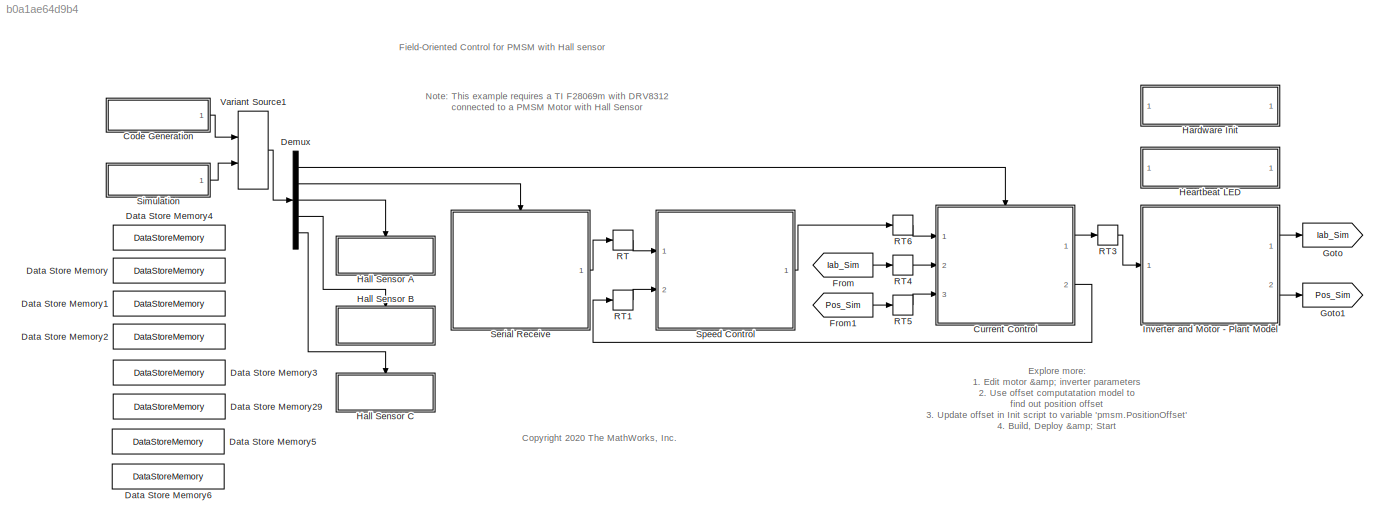
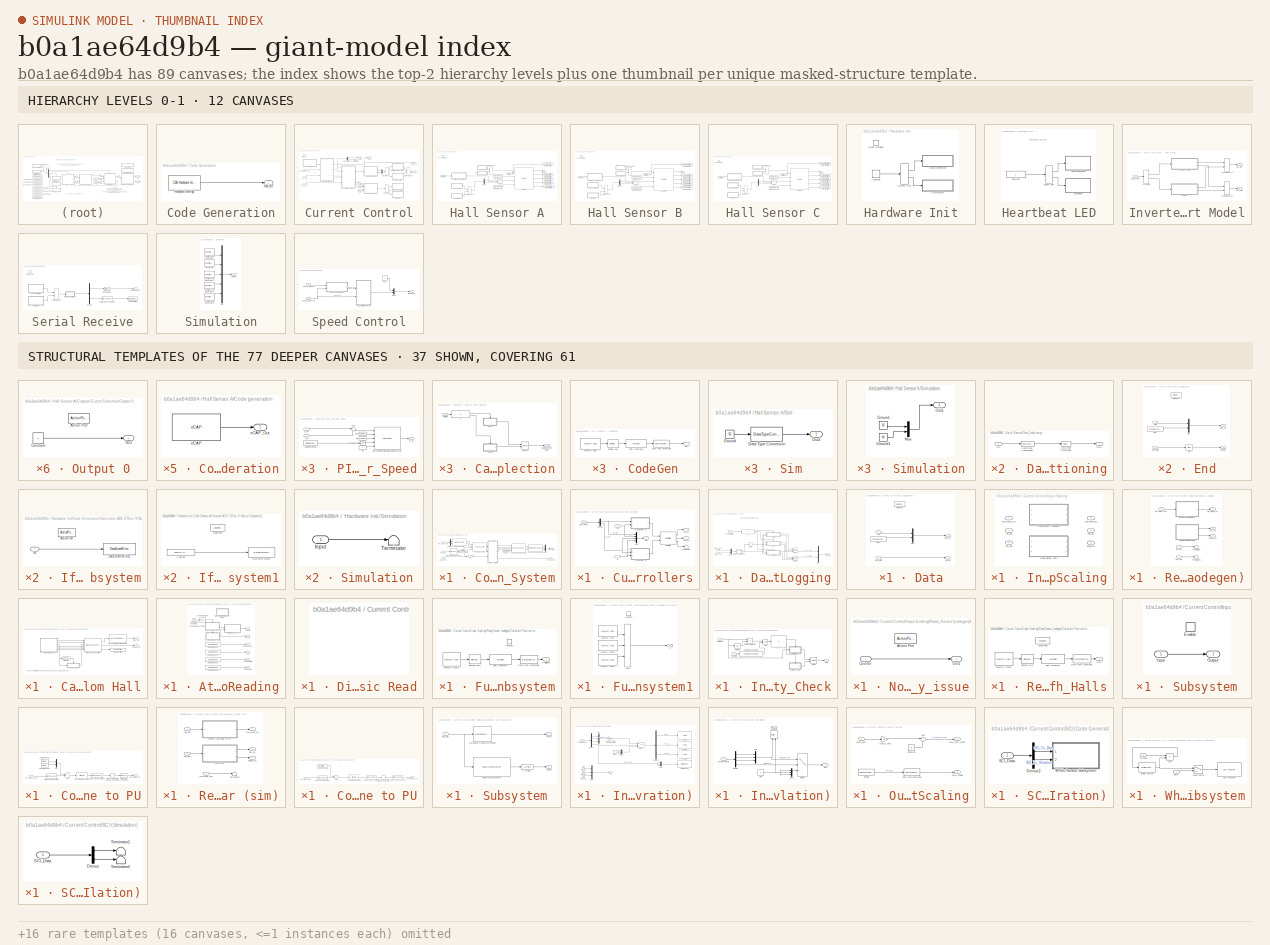
[diagram: thumbnail index - top-2 hierarchy levels (12 canvases) + 37 structural-template representatives of the remaining 77 canvases]
MODEL slx_b0a1ae64d9b4
KIND model
CONFIG AbsTol = auto
CONFIG EnableMultiTasking = on
CONFIG FixedStep = auto
CONFIG InitFcn = mcb_pmsm_foc_hall_f28069m_data;
CONFIG MaxStep = auto
CONFIG MinStep = auto
CONFIG RelTol = 1e-3
CONFIG SampleTimeConstraint = Unconstrained
CONFIG SolverName = FixedStepDiscrete
CONFIG StartTime = 0.0
CONFIG StopTime = 8
BLOCK [SubSystem] Code Generation
  Ports = [0, 1]
  RequestExecContextInheritance = off
BLOCK [Outport] Code Generation/HW_INT
  VectorParamsAs1DForOutWhenUnconnected = off
BLOCK [Reference] Code Generation/Hardware Interrupt  REF=c2000lib/Scheduling/C28x Hardware Interrupt
  Ports = [0, 1]
  SourceBlock = c2000lib/Scheduling/C28x Hardware Interrupt
  SourceProductBaseCode = TIC2000
  SourceType = C28x Interrupt Block
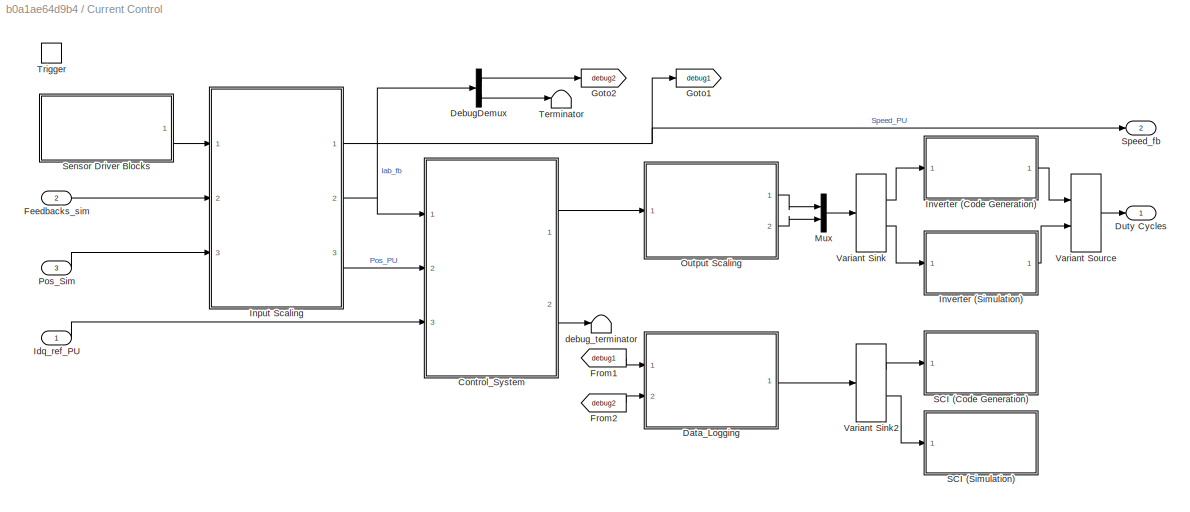
BLOCK [SubSystem] Current Control
  Ports = [3, 2, 0, 1]
  RTWMemSecFuncExecute = code_ramfuncs
  RTWSystemCode = Nonreusable function
  RequestExecContextInheritance = off
BLOCK [SubSystem] Current Control/Control_System
  Ports = [3, 2]
  RequestExecContextInheritance = off
BLOCK [Reference] Current Control/Control_System/Clarke Transform  REF=mcbcontrolslib/Clarke Transform
  Ports = [2, 2]
  SourceBlock = mcbcontrolslib/Clarke Transform
  SourceProductBaseCode = MT
  SourceType = Clarke Transform
BLOCK [SubSystem] Current Control/Control_System/Current_Controllers
  Ports = [3, 3]
  RequestExecContextInheritance = off
BLOCK [Reference] Current Control/Control_System/Current_Controllers/DQ Limiter  REF=mcbcontrolslib/DQ Limiter
  Ports = [2, 3]
  SourceBlock = mcbcontrolslib/DQ Limiter
  SourceProductBaseCode = MT
  SourceType = DQ Limiter
BLOCK [Demux] Current Control/Control_System/Current_Controllers/Demux
  Outputs = 2
  Ports = [1, 2]
BLOCK [Inport] Current Control/Control_System/Current_Controllers/Id
BLOCK [Outport] Current Control/Control_System/Current_Controllers/Idq
  Port = 3
  VectorParamsAs1DForOutWhenUnconnected = off
BLOCK [Inport] Current Control/Control_System/Current_Controllers/Idq_ref_PU
  Port = 3
BLOCK [Inport] Current Control/Control_System/Current_Controllers/Iq
  Port = 2
BLOCK [Mux] Current Control/Control_System/Current_Controllers/Mux
  DisplayOption = bar
  Ports = [4, 1]
BLOCK [SubSystem] Current Control/Control_System/Current_Controllers/PI_Controller_Id
  NameLocation = top
  Ports = [2, 1]
  RequestExecContextInheritance = off
BLOCK [DataStoreRead] Current Control/Control_System/Current_Controllers/PI_Controller_Id/Data Store Read1
  DataStoreName = Enable
  IndexOptions = Index vector (dialog)
  Indices = 1
  OutputSizes = 1
  Ports = [0, 1]
BLOCK [Reference] Current Control/Control_System/Current_Controllers/PI_Controller_Id/Discrete PI Controller with anti-windup & reset  REF=slpidlib/PID Controller
  Ports = [5, 1]
  SourceBlock = slpidlib/PID Controller
  SourceProductBaseCode = SL
  SourceType = PID 1dof
BLOCK [Inport] Current Control/Control_System/Current_Controllers/PI_Controller_Id/I_fb
  Port = 2
BLOCK [Inport] Current Control/Control_System/Current_Controllers/PI_Controller_Id/I_ref
BLOCK [Constant] Current Control/Control_System/Current_Controllers/PI_Controller_Id/Ki
  OutDataTypeStr = dataType
  SampleTime = -1
  Value = PI_params.Ki_i*Ts
BLOCK [Constant] Current Control/Control_System/Current_Controllers/PI_Controller_Id/Ki1
  NameLocation = top
  OutDataTypeStr = dataType
  SampleTime = -1
  Value = 0
BLOCK [Constant] Current Control/Control_System/Current_Controllers/PI_Controller_Id/Kp
  NameLocation = top
  OutDataTypeStr = dataType
  SampleTime = -1
  Value = PI_params.Kp_i
BLOCK [Logic] Current Control/Control_System/Current_Controllers/PI_Controller_Id/Logical Operator
  AllPortsSameDT = off
  IconShape = distinctive
  Operator = NOT
  OutDataTypeStr = boolean
  Ports = [1, 1]
BLOCK [Sum] Current Control/Control_System/Current_Controllers/PI_Controller_Id/Sum
  AccumDataTypeStr = Inherit: Same as first input
  Inputs = |+-
  OutDataTypeStr = Inherit: Same as first input
  Ports = [2, 1]
BLOCK [Outport] Current Control/Control_System/Current_Controllers/PI_Controller_Id/V_ref
  VectorParamsAs1DForOutWhenUnconnected = off
BLOCK [SubSystem] Current Control/Control_System/Current_Controllers/PI_Controller_Iq
  NameLocation = top
  Ports = [2, 1]
  RequestExecContextInheritance = off
BLOCK [DataStoreRead] Current Control/Control_System/Current_Controllers/PI_Controller_Iq/Data Store Read1
  DataStoreName = Enable
  IndexOptions = Index vector (dialog)
  Indices = 1
  OutputSizes = 1
  Ports = [0, 1]
BLOCK [Reference] Current Control/Control_System/Current_Controllers/PI_Controller_Iq/Discrete PI Controller with anti-windup & reset  REF=slpidlib/PID Controller
  Ports = [5, 1]
  SourceBlock = slpidlib/PID Controller
  SourceProductBaseCode = SL
  SourceType = PID 1dof
BLOCK [Inport] Current Control/Control_System/Current_Controllers/PI_Controller_Iq/I_fb
  Port = 2
BLOCK [Inport] Current Control/Control_System/Current_Controllers/PI_Controller_Iq/I_ref
BLOCK [Constant] Current Control/Control_System/Current_Controllers/PI_Controller_Iq/Ki
  OutDataTypeStr = dataType
  SampleTime = -1
  Value = PI_params.Ki_i*Ts
BLOCK [Constant] Current Control/Control_System/Current_Controllers/PI_Controller_Iq/Kp
  NameLocation = top
  OutDataTypeStr = dataType
  SampleTime = -1
  Value = PI_params.Kp_i
BLOCK [Constant] Current Control/Control_System/Current_Controllers/PI_Controller_Iq/Kp1
  NameLocation = top
  OutDataTypeStr = dataType
  SampleTime = -1
  Value = 0
BLOCK [Logic] Current Control/Control_System/Current_Controllers/PI_Controller_Iq/Logical Operator
  AllPortsSameDT = off
  IconShape = distinctive
  Operator = NOT
  OutDataTypeStr = boolean
  Ports = [1, 1]
BLOCK [Sum] Current Control/Control_System/Current_Controllers/PI_Controller_Iq/Sum
  AccumDataTypeStr = Inherit: Same as first input
  Inputs = |+-
  OutDataTypeStr = Inherit: Same as first input
  Ports = [2, 1]
BLOCK [Outport] Current Control/Control_System/Current_Controllers/PI_Controller_Iq/V_ref
  VectorParamsAs1DForOutWhenUnconnected = off
BLOCK [Terminator] Current Control/Control_System/Current_Controllers/Terminator
BLOCK [Outport] Current Control/Control_System/Current_Controllers/Vd_ref
  VectorParamsAs1DForOutWhenUnconnected = off
BLOCK [Outport] Current Control/Control_System/Current_Controllers/Vq_ref
  Port = 2
  VectorParamsAs1DForOutWhenUnconnected = off
BLOCK [Demux] Current Control/Control_System/Demux
  Outputs = 2
  Ports = [1, 2]
BLOCK [From] Current Control/Control_System/From
  GotoTag = sinTheta
BLOCK [From] Current Control/Control_System/From1
  GotoTag = cosTheta
BLOCK [Goto] Current Control/Control_System/Goto
  GotoTag = sinTheta
BLOCK [Goto] Current Control/Control_System/Goto1
  GotoTag = cosTheta
BLOCK [Inport] Current Control/Control_System/Iab_meas_PU
BLOCK [Outport] Current Control/Control_System/Idq_debug
  Port = 2
  VectorParamsAs1DForOutWhenUnconnected = off
BLOCK [Inport] Current Control/Control_System/Idq_ref_PU
  Port = 3
BLOCK [Reference] Current Control/Control_System/Inverse Park Transform  REF=mcbcontrolslib/Inverse Park Transform
  Ports = [4, 2]
  SourceBlock = mcbcontrolslib/Inverse Park Transform
  SourceProductBaseCode = MT
  SourceType = Inverse Park Transform
BLOCK [Mux] Current Control/Control_System/Mux1
  DisplayOption = bar
  Inputs = 3
  Ports = [3, 1]
BLOCK [Reference] Current Control/Control_System/Park Transform  REF=mcbcontrolslib/Park Transform
  Ports = [4, 2]
  SourceBlock = mcbcontrolslib/Park Transform
  SourceProductBaseCode = MT
  SourceType = Park Transform
BLOCK [Inport] Current Control/Control_System/Pos_PU
  Port = 2
BLOCK [Reference] Current Control/Control_System/Sine-Cosine Lookup  REF=mcbcontrolslib/Sine-Cosine Lookup
  Ports = [1, 2]
  SourceBlock = mcbcontrolslib/Sine-Cosine Lookup
  SourceProductBaseCode = MT
  SourceType = Sine-Cosine Lookup
BLOCK [Reference] Current Control/Control_System/Space Vector Generator  REF=mcbcontrolslib/PWM Reference Generator
  Ports = [2, 3]
  SourceBlock = mcbcontrolslib/PWM Reference Generator
  SourceProductBaseCode = MT
  SourceType = PWM Modulation
BLOCK [Outport] Current Control/Control_System/Vabc in PU
  VectorParamsAs1DForOutWhenUnconnected = off
BLOCK [SubSystem] Current Control/Data_Logging
  Ports = [2, 1]
  RequestExecContextInheritance = off
BLOCK [Reference] Current Control/Data_Logging/Counter Limited  REF=simulink/Sources/Counter
Limited
  Ports = [0, 1]
  SourceBlock = simulink/Sources/Counter\nLimited
  SourceProductBaseCode = SL
  SourceType = Counter Limited
BLOCK [SubSystem] Current Control/Data_Logging/Data
  Ports = [2, 2, 0, 0, 0, 0, 0, 1]
  RequestExecContextInheritance = off
  TreatAsAtomicUnit = on
BLOCK [ActionPort] Current Control/Data_Logging/Data/Action Port
  ActionPortLabel = else
BLOCK [Inport] Current Control/Data_Logging/Data/Data
BLOCK [Outport] Current Control/Data_Logging/Data/Data_out
  VectorParamsAs1DForOutWhenUnconnected = off
BLOCK [Inport] Current Control/Data_Logging/Data/Data_width
  Port = 2
BLOCK [Outport] Current Control/Data_Logging/Data/Iteration
  Port = 2
  VectorParamsAs1DForOutWhenUnconnected = off
BLOCK [Mux] Current Control/Data_Logging/Data/Mux
  DisplayOption = bar
  Inputs = 2
  Ports = [2, 1]
BLOCK [Constant] Current Control/Data_Logging/Data/Start
  OutDataTypeStr = uint16
  Value = hex2dec('0000')
BLOCK [SubSystem] Current Control/Data_Logging/Data_Conditioning
  Ports = [1, 1]
  RequestExecContextInheritance = off
BLOCK [DataTypeConversion] Current Control/Data_Logging/Data_Conditioning/Data Type Conversion
  OutDataTypeStr = fixdt(1,32,12)
  RndMeth = Simplest
  SaturateOnIntegerOverflow = off
BLOCK [DataTypeConversion] Current Control/Data_Logging/Data_Conditioning/Data Type Conversion3
  ConvertRealWorld = Stored Integer (SI)
  OutDataTypeStr = uint16
  RndMeth = Simplest
  SaturateOnIntegerOverflow = off
BLOCK [Inport] Current Control/Data_Logging/Data_Conditioning/In1
BLOCK [Outport] Current Control/Data_Logging/Data_Conditioning/Out1
  VectorParamsAs1DForOutWhenUnconnected = off
BLOCK [Inport] Current Control/Data_Logging/Data_Log1
BLOCK [Inport] Current Control/Data_Logging/Data_Log2
  Port = 2
BLOCK [SubSystem] Current Control/Data_Logging/End
  Ports = [2, 2, 0, 0, 0, 0, 0, 1]
  RequestExecContextInheritance = off
  TreatAsAtomicUnit = on
BLOCK [ActionPort] Current Control/Data_Logging/End/Action Port
  ActionPortLabel = elseif(u1 == 599)
BLOCK [Bias] Current Control/Data_Logging/End/Bias
  Bias = 1
  SaturateOnIntegerOverflow = off
BLOCK [Inport] Current Control/Data_Logging/End/Data
BLOCK [Outport] Current Control/Data_Logging/End/Data_out
  VectorParamsAs1DForOutWhenUnconnected = off
BLOCK [Inport] Current Control/Data_Logging/End/Data_width
  Port = 2
BLOCK [Outport] Current Control/Data_Logging/End/Iteration
  Port = 2
  VectorParamsAs1DForOutWhenUnconnected = off
BLOCK [Mux] Current Control/Data_Logging/End/Mux
  DisplayOption = bar
  Inputs = 2
  Ports = [2, 1]
BLOCK [Constant] Current Control/Data_Logging/End/Start
  OutDataTypeStr = uint16
  Value = hex2dec('4545')
BLOCK [If] Current Control/Data_Logging/If
  ElseIfExpressions = u1 == 599
  IfExpression = u1 == 0
  Ports = [1, 3]
BLOCK [Merge] Current Control/Data_Logging/Merge
  Inputs = 3
  Ports = [3, 1]
BLOCK [Merge] Current Control/Data_Logging/Merge1
  Inputs = 3
  Ports = [3, 1]
BLOCK [Mux] Current Control/Data_Logging/Mux
  DisplayOption = bar
  Inputs = 2
  Ports = [2, 1]
BLOCK [Mux] Current Control/Data_Logging/Mux3
  DisplayOption = bar
  Inputs = 2
  Ports = [2, 1]
BLOCK [Outport] Current Control/Data_Logging/SCI_Tx
BLOCK [SubSystem] Current Control/Data_Logging/Start
  Ports = [2, 2, 0, 0, 0, 0, 0, 1]
  RequestExecContextInheritance = off
  TreatAsAtomicUnit = on
BLOCK [ActionPort] Current Control/Data_Logging/Start/Action Port
  ActionPortLabel = if(u1 == 0)
BLOCK [Bias] Current Control/Data_Logging/Start/Bias
  Bias = 1
  SaturateOnIntegerOverflow = off
BLOCK [Inport] Current Control/Data_Logging/Start/Data
BLOCK [Outport] Current Control/Data_Logging/Start/Data_out
  VectorParamsAs1DForOutWhenUnconnected = off
BLOCK [Inport] Current Control/Data_Logging/Start/Data_width
  Port = 2
BLOCK [Constant] Current Control/Data_Logging/Start/End
  OutDataTypeStr = uint16
  Value = hex2dec('5353')
BLOCK [Outport] Current Control/Data_Logging/Start/Iteration
  Port = 2
  VectorParamsAs1DForOutWhenUnconnected = off
BLOCK [Mux] Current Control/Data_Logging/Start/Mux
  DisplayOption = bar
  Inputs = 2
  Ports = [2, 1]
BLOCK [Width] Current Control/Data_Logging/Width
  DataType = uint16
  OutDataTypeMode = All ports same datatype
BLOCK [Demux] Current Control/DebugDemux
  Outputs = 2
  Ports = [1, 2]
BLOCK [Outport] Current Control/Duty Cycles
  InitialOutput = 0
  VectorParamsAs1DForOutWhenUnconnected = off
BLOCK [Inport] Current Control/Feedbacks_sim
  Port = 2
BLOCK [From] Current Control/From1
  GotoTag = debug1
BLOCK [From] Current Control/From2
  GotoTag = debug2
BLOCK [Goto] Current Control/Goto1
  GotoTag = debug1
BLOCK [Goto] Current Control/Goto2
  GotoTag = debug2
BLOCK [Inport] Current Control/Idq_ref_PU
BLOCK [SubSystem] Current Control/Input Scaling
  Ports = [3, 3]
  PropagateVariantConditions = on
  RequestExecContextInheritance = off
  Variant = on
  VariantControl = Variant1
  VariantControlMode = sim codegen switching
BLOCK [Outport] Current Control/Input Scaling/Iab_Meas_PU
  Port = 2
  VectorParamsAs1DForOutWhenUnconnected = off
BLOCK [Inport] Current Control/Input Scaling/Iab_Sim
  Port = 2
BLOCK [Inport] Current Control/Input Scaling/Iab_meas_ADC
BLOCK [Outport] Current Control/Input Scaling/Pos_PU
  Port = 3
  VectorParamsAs1DForOutWhenUnconnected = off
BLOCK [Inport] Current Control/Input Scaling/Pos_Sim
  Port = 3
BLOCK [SubSystem] Current Control/Input Scaling/Read_Sensor (codegen)
  Ports = [3, 3]
  RequestExecContextInheritance = off
  VariantControl = (codegen)
BLOCK [SubSystem] Current Control/Input Scaling/Read_Sensor (codegen)/Calculate Position from Hall
  Ports = [0, 2]
  RequestExecContextInheritance = off
BLOCK [SubSystem] Current Control/Input Scaling/Read_Sensor (codegen)/Calculate Position from Hall/Atomic Hall Reading
  Ports = [0, 6]
  RequestExecContextInheritance = off
  TreatAsAtomicUnit = on
BLOCK [Outport] Current Control/Input Scaling/Read_Sensor (codegen)/Calculate Position from Hall/Atomic Hall Reading/Count
  Port = 2
BLOCK [DataStoreRead] Current Control/Input Scaling/Read_Sensor (codegen)/Calculate Position from Hall/Atomic Hall Reading/Data Store Read2
  DataStoreName = GlobalSpeedCount
  IndexOptions = Index vector (dialog)
  Indices = 1
  OutputSizes = 1
  Ports = [0, 1]
BLOCK [DataStoreRead] Current Control/Input Scaling/Read_Sensor (codegen)/Calculate Position from Hall/Atomic Hall Reading/Data Store Read3
  DataStoreName = GlobalDirection
  IndexOptions = Index vector (dialog)
  Indices = 1
  OutputSizes = 1
  Ports = [0, 1]
BLOCK [DataStoreRead] Current Control/Input Scaling/Read_Sensor (codegen)/Calculate Position from Hall/Atomic Hall Reading/Data Store Read4
  DataStoreName = GlobalSpeedValidity
  IndexOptions = Index vector (dialog)
  Indices = 1
  OutputSizes = 1
  Ports = [0, 1]
BLOCK [DataStoreRead] Current Control/Input Scaling/Read_Sensor (codegen)/Calculate Position from Hall/Atomic Hall Reading/Data Store Read5
  DataStoreName = HallStateChangeFlag
  IndexOptions = Index vector (dialog)
  Indices = 1
  OutputSizes = 1
  Ports = [0, 1]
  Priority = 1
BLOCK [Outport] Current Control/Input Scaling/Read_Sensor (codegen)/Calculate Position from Hall/Atomic Hall Reading/Dir
  Port = 4
BLOCK [SubSystem] Current Control/Input Scaling/Read_Sensor (codegen)/Calculate Position from Hall/Atomic Hall Reading/Disable Interrupts for Atomic Read
  CopyFcn = cccopyfcn(gcb)
  OpenFcn = ccopenfcn('System Outputs Function')
  Ports = []
  RequestExecContextInheritance = off
BLOCK [Reference] Current Control/Input Scaling/Read_Sensor (codegen)/Calculate Position from Hall/Atomic Hall Reading/Function-Call Generator  REF=simulink/Ports &
Subsystems/Function-Call
Generator
  Ports = [0, 1]
  SourceBlock = simulink/Ports &\nSubsystems/Function-Call\nGenerator
  SourceProductBaseCode = SL
  SourceType = Function-Call Generator
BLOCK [FunctionCallSplit] Current Control/Input Scaling/Read_Sensor (codegen)/Calculate Position from Hall/Atomic Hall Reading/Function-Call Split
  NumOutputPorts = 2
  OutputPortLayout = default
  Ports = [1, 2]
BLOCK [SubSystem] Current Control/Input Scaling/Read_Sensor (codegen)/Calculate Position from Hall/Atomic Hall Reading/Function-Call Subsystem
  Ports = [0, 1, 0, 1]
  RequestExecContextInheritance = off
  TreatAsAtomicUnit = on
BLOCK [Reference] Current Control/Input Scaling/Read_Sensor (codegen)/Calculate Position from Hall/Atomic Hall Reading/Function-Call Subsystem/Bitwise AND  REF=simulink/Logic and Bit
Operations/Bitwise
Operator
  Ports = [1, 1]
  SourceBlock = simulink/Logic and Bit\nOperations/Bitwise\nOperator
  SourceProductBaseCode = SL
  SourceType = Bitwise Operator
BLOCK [DataTypeConversion] Current Control/Input Scaling/Read_Sensor (codegen)/Calculate Position from Hall/Atomic Hall Reading/Function-Call Subsystem/Data Type Conversion
  ConvertRealWorld = Stored Integer (SI)
  OutDataTypeStr = uint32
  RndMeth = Floor
  SaturateOnIntegerOverflow = off
BLOCK [Outport] Current Control/Input Scaling/Read_Sensor (codegen)/Calculate Position from Hall/Atomic Hall Reading/Function-Call Subsystem/HallSignal
BLOCK [Reference] Current Control/Input Scaling/Read_Sensor (codegen)/Calculate Position from Hall/Atomic Hall Reading/Function-Call Subsystem/Memory Copy3  REF=svdutilitieslib/Memory Copy
  Ports = [0, 1]
  SourceBlock = svdutilitieslib/Memory Copy
  SourceProductBaseCode = ANDROID,ARDUINO,ML_ARDUINO,ECCORTEXA,ECCORTEXR,SC_BEAGLEBONE_BLUE,EC_FREEDOM_BOARD,EC_FRDM_K64F,INTEL_BLOCKSET,MICROBIT,NUCLEO,NVIDIA,PX4AUTOPILOTS,RASPPIIO,STMICRODIS,TIC2000,XILINX_BLOCKSET
  SourceType = Memory Copy
BLOCK [ArithShift] Current Control/Input Scaling/Read_Sensor (codegen)/Calculate Position from Hall/Atomic Hall Reading/Function-Call Subsystem/Shift Arithmetic
  BitShiftNumber = 24
  InputPortMap = u0
  Ports = [1, 1]
BLOCK [TriggerPort] Current Control/Input Scaling/Read_Sensor (codegen)/Calculate Position from Hall/Atomic Hall Reading/Function-Call Subsystem/function
  Ports = []
  StatesWhenEnabling = held
  TriggerType = function-call
  VariantControl = Variant
BLOCK [SubSystem] Current Control/Input Scaling/Read_Sensor (codegen)/Calculate Position from Hall/Atomic Hall Reading/Function-Call Subsystem1
  Ports = [0, 1, 0, 1]
  RequestExecContextInheritance = off
  TreatAsAtomicUnit = on
BLOCK [Reference] Current Control/Input Scaling/Read_Sensor (codegen)/Calculate Position from Hall/Atomic Hall Reading/Function-Call Subsystem1/Memory Copy  REF=idelinklib_common/Memory Copy
  Ports = [0, 1]
  SourceBlock = idelinklib_common/Memory Copy
  SourceProductBaseCode = ME
  SourceType = Memory Copy
BLOCK [Reference] Current Control/Input Scaling/Read_Sensor (codegen)/Calculate Position from Hall/Atomic Hall Reading/Function-Call Subsystem1/Memory Copy1  REF=idelinklib_common/Memory Copy
  Ports = [0, 1]
  SourceBlock = idelinklib_common/Memory Copy
  SourceProductBaseCode = ME
  SourceType = Memory Copy
BLOCK [Reference] Current Control/Input Scaling/Read_Sensor (codegen)/Calculate Position from Hall/Atomic Hall Reading/Function-Call Subsystem1/Memory Copy2  REF=idelinklib_common/Memory Copy
  Ports = [0, 1]
  SourceBlock = idelinklib_common/Memory Copy
  SourceProductBaseCode = ME
  SourceType = Memory Copy
BLOCK [MinMax] Current Control/Input Scaling/Read_Sensor (codegen)/Calculate Position from Hall/Atomic Hall Reading/Function-Call Subsystem1/Min
  Inputs = 3
  Ports = [3, 1]
BLOCK [TriggerPort] Current Control/Input Scaling/Read_Sensor (codegen)/Calculate Position from Hall/Atomic Hall Reading/Function-Call Subsystem1/function
  Ports = []
  StatesWhenEnabling = held
  TriggerType = function-call
  VariantControl = Variant
BLOCK [Outport] Current Control/Input Scaling/Read_Sensor (codegen)/Calculate Position from Hall/Atomic Hall Reading/Function-Call Subsystem1/u
BLOCK [Outport] Current Control/Input Scaling/Read_Sensor (codegen)/Calculate Position from Hall/Atomic Hall Reading/HallState
BLOCK [Outport] Current Control/Input Scaling/Read_Sensor (codegen)/Calculate Position from Hall/Atomic Hall Reading/Hallchange
  Port = 6
BLOCK [SubSystem] Current Control/Input Scaling/Read_Sensor (codegen)/Calculate Position from Hall/Atomic Hall Reading/Integrity_Check
  Ports = [2, 1]
  RequestExecContextInheritance = off
BLOCK [Reference] Current Control/Input Scaling/Read_Sensor (codegen)/Calculate Position from Hall/Atomic Hall Reading/Integrity_Check/Compare To Constant  REF=simulink/Logic and Bit
Operations/Compare
To Constant
  Ports = [1, 1]
  SourceBlock = simulink/Logic and Bit\nOperations/Compare\nTo Constant
  SourceProductBaseCode = SL
  SourceType = Compare To Constant
BLOCK [Inport] Current Control/Input Scaling/Read_Sensor (codegen)/Calculate Position from Hall/Atomic Hall Reading/Integrity_Check/CounterIn
  Port = 2
BLOCK [Inport] Current Control/Input Scaling/Read_Sensor (codegen)/Calculate Position from Hall/Atomic Hall Reading/Integrity_Check/HallSignal
BLOCK [Outport] Current Control/Input Scaling/Read_Sensor (codegen)/Calculate Position from Hall/Atomic Hall Reading/Integrity_Check/Halls
BLOCK [If] Current Control/Input Scaling/Read_Sensor (codegen)/Calculate Position from Hall/Atomic Hall Reading/Integrity_Check/If
  IfExpression = u1 == 0
  Ports = [1, 2]
BLOCK [Merge] Current Control/Input Scaling/Read_Sensor (codegen)/Calculate Position from Hall/Atomic Hall Reading/Integrity_Check/Merge
  Ports = [2, 1]
BLOCK [Logic] Current Control/Input Scaling/Read_Sensor (codegen)/Calculate Position from Hall/Atomic Hall Reading/Integrity_Check/NOT
  AllPortsSameDT = off
  IconShape = distinctive
  OutDataTypeStr = boolean
  Ports = [2, 1]
BLOCK [SubSystem] Current Control/Input Scaling/Read_Sensor (codegen)/Calculate Position from Hall/Atomic Hall Reading/Integrity_Check/No_Integrity_issue
  Ports = [1, 1, 0, 0, 0, 0, 0, 1]
  RequestExecContextInheritance = off
  TreatAsAtomicUnit = on
BLOCK [ActionPort] Current Control/Input Scaling/Read_Sensor (codegen)/Calculate Position from Hall/Atomic Hall Reading/Integrity_Check/No_Integrity_issue/Action Port
BLOCK [Inport] Current Control/Input Scaling/Read_Sensor (codegen)/Calculate Position from Hall/Atomic Hall Reading/Integrity_Check/No_Integrity_issue/Counter
BLOCK [Outport] Current Control/Input Scaling/Read_Sensor (codegen)/Calculate Position from Hall/Atomic Hall Reading/Integrity_Check/No_Integrity_issue/Out1
BLOCK [SubSystem] Current Control/Input Scaling/Read_Sensor (codegen)/Calculate Position from Hall/Atomic Hall Reading/Integrity_Check/Refresh_Halls
  Ports = [0, 1, 0, 0, 0, 0, 0, 1]
  RequestExecContextInheritance = off
  TreatAsAtomicUnit = on
BLOCK [ActionPort] Current Control/Input Scaling/Read_Sensor (codegen)/Calculate Position from Hall/Atomic Hall Reading/Integrity_Check/Refresh_Halls/Action Port
BLOCK [Reference] Current Control/Input Scaling/Read_Sensor (codegen)/Calculate Position from Hall/Atomic Hall Reading/Integrity_Check/Refresh_Halls/Bitwise AND  REF=simulink/Logic and Bit
Operations/Bitwise
Operator
  Ports = [1, 1]
  SourceBlock = simulink/Logic and Bit\nOperations/Bitwise\nOperator
  SourceProductBaseCode = SL
  SourceType = Bitwise Operator
BLOCK [DataTypeConversion] Current Control/Input Scaling/Read_Sensor (codegen)/Calculate Position from Hall/Atomic Hall Reading/Integrity_Check/Refresh_Halls/Data Type Conversion
  ConvertRealWorld = Stored Integer (SI)
  OutDataTypeStr = uint32
  RndMeth = Floor
  SaturateOnIntegerOverflow = off
BLOCK [Reference] Current Control/Input Scaling/Read_Sensor (codegen)/Calculate Position from Hall/Atomic Hall Reading/Integrity_Check/Refresh_Halls/Memory Copy3  REF=svdutilitieslib/Memory Copy
  Ports = [0, 1]
  SourceBlock = svdutilitieslib/Memory Copy
  SourceProductBaseCode = ANDROID,ARDUINO,ML_ARDUINO,ECCORTEXA,ECCORTEXR,SC_BEAGLEBONE_BLUE,EC_FREEDOM_BOARD,EC_FRDM_K64F,INTEL_BLOCKSET,MICROBIT,NUCLEO,NVIDIA,PX4AUTOPILOTS,RASPPIIO,STMICRODIS,TIC2000,XILINX_BLOCKSET
  SourceType = Memory Copy
BLOCK [Outport] Current Control/Input Scaling/Read_Sensor (codegen)/Calculate Position from Hall/Atomic Hall Reading/Integrity_Check/Refresh_Halls/Out1
BLOCK [ArithShift] Current Control/Input Scaling/Read_Sensor (codegen)/Calculate Position from Hall/Atomic Hall Reading/Integrity_Check/Refresh_Halls/Shift Arithmetic
  BitShiftNumber = 24
  InputPortMap = u0
  Ports = [1, 1]
BLOCK [RelationalOperator] Current Control/Input Scaling/Read_Sensor (codegen)/Calculate Position from Hall/Atomic Hall Reading/Integrity_Check/Relational Operator
  InputSameDT = off
  Operator = ==
  OutDataTypeStr = boolean
  Ports = [2, 1]
  RndMeth = Simplest
BLOCK [UnitDelay] Current Control/Input Scaling/Read_Sensor (codegen)/Calculate Position from Hall/Atomic Hall Reading/Integrity_Check/Unit Delay
  HasFrameUpgradeWarning = on
  SampleTime = -1
BLOCK [Outport] Current Control/Input Scaling/Read_Sensor (codegen)/Calculate Position from Hall/Atomic Hall Reading/SpeedCount
  Port = 3
BLOCK [Outport] Current Control/Input Scaling/Read_Sensor (codegen)/Calculate Position from Hall/Atomic Hall Reading/SpeedValidity
  Port = 5
BLOCK [DataStoreWrite] Current Control/Input Scaling/Read_Sensor (codegen)/Calculate Position from Hall/Data Store Write2
  DataStoreName = HallStateChangeFlag
  IndexOptions = Index vector (dialog)
  Indices = 1
  OutputSizes = 1
  Ports = [1]
  Priority = 2
BLOCK [Reference] Current Control/Input Scaling/Read_Sensor (codegen)/Calculate Position from Hall/Glitch Filter  REF=simulink/Logic and Bit
Operations/Compare
To Constant
  Ports = [1, 1]
  SourceBlock = simulink/Logic and Bit\nOperations/Compare\nTo Constant
  SourceProductBaseCode = SL
  SourceType = Compare To Constant
BLOCK [Reference] Current Control/Input Scaling/Read_Sensor (codegen)/Calculate Position from Hall/Hall Speed and Position  REF=mcbpositiondecoderlib/Hall Speed and Position
  Ports = [6, 3]
  SourceBlock = mcbpositiondecoderlib/Hall Speed and Position
  SourceProductBaseCode = MT
  SourceType = Hall Speed and Position
BLOCK [Reference] Current Control/Input Scaling/Read_Sensor (codegen)/Calculate Position from Hall/Mechanical to Electrical Position  REF=mcbpositiondecoderlib/Mechanical to Electrical Position
  Ports = [1, 1]
  SourceBlock = mcbpositiondecoderlib/Mechanical to Electrical Position
  SourceProductBaseCode = MT
  SourceType = Mechanical to Electrical Position
BLOCK [Outport] Current Control/Input Scaling/Read_Sensor (codegen)/Calculate Position from Hall/Pos_PU
  InitialOutput = 0
  VectorParamsAs1DForOutWhenUnconnected = off
BLOCK [Outport] Current Control/Input Scaling/Read_Sensor (codegen)/Calculate Position from Hall/Speed_PU
  InitialOutput = 0
  Port = 2
  VectorParamsAs1DForOutWhenUnconnected = off
BLOCK [SubSystem] Current Control/Input Scaling/Read_Sensor (codegen)/Calculate Position from Hall/Subsystem
  Ports = [1, 1, 1]
  RequestExecContextInheritance = off
BLOCK [EnablePort] Current Control/Input Scaling/Read_Sensor (codegen)/Calculate Position from Hall/Subsystem/Enable
  Ports = []
BLOCK [Inport] Current Control/Input Scaling/Read_Sensor (codegen)/Calculate Position from Hall/Subsystem/Input
BLOCK [Outport] Current Control/Input Scaling/Read_Sensor (codegen)/Calculate Position from Hall/Subsystem/Output
BLOCK [SubSystem] Current Control/Input Scaling/Read_Sensor (codegen)/Convert ADC value to PU
  Ports = [1, 1]
  RequestExecContextInheritance = off
BLOCK [Sum] Current Control/Input Scaling/Read_Sensor (codegen)/Convert ADC value to PU/Add
  IconShape = rectangular
  Inputs = -+
  Ports = [2, 1]
BLOCK [UnaryMinus] Current Control/Input Scaling/Read_Sensor (codegen)/Convert ADC value to PU/DRV_8312 EVM is using an inverted amplifier circuit for current sensing
BLOCK [DataStoreRead] Current Control/Input Scaling/Read_Sensor (codegen)/Convert ADC value to PU/Data Store Read
  DataStoreName = IaOffset
  IndexOptions = Index vector (dialog)
  Indices = 1
  OutputSizes = 1
  Ports = [0, 1]
BLOCK [DataStoreRead] Current Control/Input Scaling/Read_Sensor (codegen)/Convert ADC value to PU/Data Store Read1
  DataStoreName = IbOffset
  IndexOptions = Index vector (dialog)
  Indices = 1
  OutputSizes = 1
  Ports = [0, 1]
BLOCK [DataTypeConversion] Current Control/Input Scaling/Read_Sensor (codegen)/Convert ADC value to PU/Data Type Conversion
  ConvertRealWorld = Stored Integer (SI)
  OutDataTypeStr = int32
  RndMeth = Floor
  SaturateOnIntegerOverflow = off
BLOCK [DataTypeConversion] Current Control/Input Scaling/Read_Sensor (codegen)/Convert ADC value to PU/Data Type Conversion1
  OutDataTypeStr = dataType
  RndMeth = Floor
  SaturateOnIntegerOverflow = off
BLOCK [DataTypeConversion] Current Control/Input Scaling/Read_Sensor (codegen)/Convert ADC value to PU/Data Type Conversion3
  ConvertRealWorld = Stored Integer (SI)
  OutDataTypeStr = fixdt(1,32,17)
  RndMeth = Simplest
  SaturateOnIntegerOverflow = off
BLOCK [Inport] Current Control/Input Scaling/Read_Sensor (codegen)/Convert ADC value to PU/Iab_meas_ADC
BLOCK [Outport] Current Control/Input Scaling/Read_Sensor (codegen)/Convert ADC value to PU/Iab_meas_PU
  InitialOutput = 0
  VectorParamsAs1DForOutWhenUnconnected = off
BLOCK [Mux] Current Control/Input Scaling/Read_Sensor (codegen)/Convert ADC value to PU/Mux
  DisplayOption = bar
  Inputs = 2
  Ports = [2, 1]
BLOCK [ArithShift] Current Control/Input Scaling/Read_Sensor (codegen)/Convert ADC value to PU/Q17 per unit conversion
  BitShiftNumber = -6
  InputPortMap = u0
  Ports = [1, 1]
BLOCK [Outport] Current Control/Input Scaling/Read_Sensor (codegen)/Iab_Meas_PU
  VectorParamsAs1DForOutWhenUnconnected = off
BLOCK [Inport] Current Control/Input Scaling/Read_Sensor (codegen)/Iab_Sim
  Port = 2
BLOCK [Inport] Current Control/Input Scaling/Read_Sensor (codegen)/Iab_meas_ADC
  OutDataTypeStr = uint16
BLOCK [Outport] Current Control/Input Scaling/Read_Sensor (codegen)/Pos_PU
  Port = 2
  VectorParamsAs1DForOutWhenUnconnected = off
BLOCK [Inport] Current Control/Input Scaling/Read_Sensor (codegen)/Pos_Sim
  Port = 3
BLOCK [Outport] Current Control/Input Scaling/Read_Sensor (codegen)/Speed_PU
  Port = 3
  VectorParamsAs1DForOutWhenUnconnected = off
BLOCK [Terminator] Current Control/Input Scaling/Read_Sensor (codegen)/Terminator
BLOCK [Terminator] Current Control/Input Scaling/Read_Sensor (codegen)/Terminator1
BLOCK [SubSystem] Current Control/Input Scaling/Read_Sensor (sim)
  Ports = [3, 3]
  RequestExecContextInheritance = off
  VariantControl = (sim)
BLOCK [SubSystem] Current Control/Input Scaling/Read_Sensor (sim)/Convert ADC value to PU
  Ports = [1, 1]
  RequestExecContextInheritance = off
BLOCK [Constant] Current Control/Input Scaling/Read_Sensor (sim)/Convert ADC value to PU/0A in ADC counts
  OutDataTypeStr = int32
  SampleTime = -1
  Value = [inverter.CtSensAOffset inverter.CtSensBOffset]
BLOCK [Sum] Current Control/Input Scaling/Read_Sensor (sim)/Convert ADC value to PU/Add
  IconShape = rectangular
  Inputs = -+
  Ports = [2, 1]
BLOCK [UnaryMinus] Current Control/Input Scaling/Read_Sensor (sim)/Convert ADC value to PU/DRV_8312 EVM is using an inverted amplifier circuit for current sensing
BLOCK [DataTypeConversion] Current Control/Input Scaling/Read_Sensor (sim)/Convert ADC value to PU/Data Type Conversion
  ConvertRealWorld = Stored Integer (SI)
  OutDataTypeStr = int32
  RndMeth = Floor
  SaturateOnIntegerOverflow = off
BLOCK [DataTypeConversion] Current Control/Input Scaling/Read_Sensor (sim)/Convert ADC value to PU/Data Type Conversion1
  OutDataTypeStr = dataType
  RndMeth = Floor
  SaturateOnIntegerOverflow = off
BLOCK [DataTypeConversion] Current Control/Input Scaling/Read_Sensor (sim)/Convert ADC value to PU/Data Type Conversion3
  ConvertRealWorld = Stored Integer (SI)
  OutDataTypeStr = fixdt(1,32,17)
  RndMeth = Simplest
  SaturateOnIntegerOverflow = off
BLOCK [Inport] Current Control/Input Scaling/Read_Sensor (sim)/Convert ADC value to PU/Iab_meas_ADC
BLOCK [Outport] Current Control/Input Scaling/Read_Sensor (sim)/Convert ADC value to PU/Iab_meas_PU
  InitialOutput = 0
  VectorParamsAs1DForOutWhenUnconnected = off
BLOCK [ArithShift] Current Control/Input Scaling/Read_Sensor (sim)/Convert ADC value to PU/Q17 per unit conversion
  BitShiftNumber = -6
  InputPortMap = u0
  Ports = [1, 1]
BLOCK [Outport] Current Control/Input Scaling/Read_Sensor (sim)/Iab_Meas_PU
  VectorParamsAs1DForOutWhenUnconnected = off
BLOCK [Inport] Current Control/Input Scaling/Read_Sensor (sim)/Iab_Sim
  Port = 2
BLOCK [Inport] Current Control/Input Scaling/Read_Sensor (sim)/Iab_meas_ADC
BLOCK [Outport] Current Control/Input Scaling/Read_Sensor (sim)/Pos_PU
  Port = 2
  VectorParamsAs1DForOutWhenUnconnected = off
BLOCK [Inport] Current Control/Input Scaling/Read_Sensor (sim)/Pos_Sim
  Port = 3
BLOCK [Outport] Current Control/Input Scaling/Read_Sensor (sim)/Speed_PU
  Port = 3
  VectorParamsAs1DForOutWhenUnconnected = off
BLOCK [SubSystem] Current Control/Input Scaling/Read_Sensor (sim)/Subsystem
  Ports = [1, 2]
  RequestExecContextInheritance = off
BLOCK [Reference] Current Control/Input Scaling/Read_Sensor (sim)/Subsystem/IIR Filter  REF=mcbcontrolslib/IIR Filter
  Ports = [1, 1]
  SourceBlock = mcbcontrolslib/IIR Filter
  SourceProductBaseCode = MT
  SourceType = IIR Filter
BLOCK [Reference] Current Control/Input Scaling/Read_Sensor (sim)/Subsystem/Mechanical to Electrical Position  REF=mcbpositiondecoderlib/Mechanical to Electrical Position
  Ports = [1, 1]
  SourceBlock = mcbpositiondecoderlib/Mechanical to Electrical Position
  SourceProductBaseCode = MT
  SourceType = Mechanical to Electrical Position
BLOCK [Inport] Current Control/Input Scaling/Read_Sensor (sim)/Subsystem/Pos_Sim
BLOCK [Outport] Current Control/Input Scaling/Read_Sensor (sim)/Subsystem/Speed
  Port = 2
BLOCK [Reference] Current Control/Input Scaling/Read_Sensor (sim)/Subsystem/Speed Measurement  REF=mcbpositiondecoderlib/Speed Measurement
  Ports = [1, 1]
  SourceBlock = mcbpositiondecoderlib/Speed Measurement
  SourceProductBaseCode = MT
  SourceType = Speed Measurement
BLOCK [Outport] Current Control/Input Scaling/Read_Sensor (sim)/Subsystem/Theta
BLOCK [Terminator] Current Control/Input Scaling/Read_Sensor (sim)/Terminator
BLOCK [Outport] Current Control/Input Scaling/Speed_PU
  VectorParamsAs1DForOutWhenUnconnected = off
BLOCK [SubSystem] Current Control/Inverter (Code Generation)
  Ports = [1, 1]
  RequestExecContextInheritance = off
BLOCK [Demux] Current Control/Inverter (Code Generation)/Demux
  Ports = [1, 4]
BLOCK [Demux] Current Control/Inverter (Code Generation)/Demux1
  Outputs = 3
  Ports = [1, 3]
BLOCK [Reference] Current Control/Inverter (Code Generation)/Digital Output2  REF=c2806xlib/Digital Output
  Ports = [1]
  SourceBlock = c2806xlib/Digital Output
  SourceProductBaseCode = TIC2000
  SourceType = C2806x GPIO Digital Output
  UserDataPersistent = on
BLOCK [Ground] Current Control/Inverter (Code Generation)/Ground
BLOCK [Ground] Current Control/Inverter (Code Generation)/Ground1
BLOCK [Ground] Current Control/Inverter (Code Generation)/Ground2
BLOCK [Inport] Current Control/Inverter (Code Generation)/Inverter Signals
BLOCK [Mux] Current Control/Inverter (Code Generation)/Mux
  DisplayOption = bar
  Inputs = 3
  Ports = [3, 1]
BLOCK [Mux] Current Control/Inverter (Code Generation)/Mux1
  DisplayOption = bar
  Inputs = 3
  Ports = [3, 1]
BLOCK [Mux] Current Control/Inverter (Code Generation)/Mux2
  DisplayOption = bar
  Inputs = 3
  Ports = [3, 1]
BLOCK [Mux] Current Control/Inverter (Code Generation)/Mux3
  DisplayOption = bar
  Inputs = 3
  Ports = [3, 1]
BLOCK [Gain] Current Control/Inverter (Code Generation)/Scale_to_PWM_Counter_PRD
  Gain = target.PWM_Counter_Period
  OutDataTypeStr = uint16
  RndMeth = Simplest
BLOCK [Outport] Current Control/Inverter (Code Generation)/Sim
  VectorParamsAs1DForOutWhenUnconnected = off
BLOCK [Switch] Current Control/Inverter (Code Generation)/Switch1
  InputSameDT = off
  SaturateOnIntegerOverflow = off
  Threshold = 0.5
BLOCK [Reference] Current Control/Inverter (Code Generation)/ePWM1  REF=c2802xlib/ePWM
  Ports = [1]
  SourceBlock = c2802xlib/ePWM
  SourceProductBaseCode = TIC2000
  SourceType = ePWM Type 1-4
BLOCK [Reference] Current Control/Inverter (Code Generation)/ePWM2  REF=c2802xlib/ePWM
  Ports = [1]
  SourceBlock = c2802xlib/ePWM
  SourceProductBaseCode = TIC2000
  SourceType = ePWM Type 1-4
BLOCK [Reference] Current Control/Inverter (Code Generation)/ePWM3  REF=c2802xlib/ePWM
  Ports = [1]
  SourceBlock = c2802xlib/ePWM
  SourceProductBaseCode = TIC2000
  SourceType = ePWM Type 1-4
BLOCK [Constant] Current Control/Inverter (Code Generation)/stop
  OutDataTypeStr = uint16
  Value = 0
BLOCK [SubSystem] Current Control/Inverter (Simulation)
  Ports = [1, 1]
  RequestExecContextInheritance = off
BLOCK [DataTypeDuplicate] Current Control/Inverter (Simulation)/Data Type Duplicate
  Ports = [2]
BLOCK [Demux] Current Control/Inverter (Simulation)/Demux
  Ports = [1, 4]
BLOCK [Inport] Current Control/Inverter (Simulation)/Inverter Signals
BLOCK [Mux] Current Control/Inverter (Simulation)/Mux
  DisplayOption = bar
  Inputs = 3
  Ports = [3, 1]
BLOCK [Mux] Current Control/Inverter (Simulation)/Mux2
  DisplayOption = bar
  Inputs = 3
  Ports = [3, 1]
BLOCK [Outport] Current Control/Inverter (Simulation)/Sim
  VectorParamsAs1DForOutWhenUnconnected = off
BLOCK [Switch] Current Control/Inverter (Simulation)/Switch1
  InputSameDT = off
  RndMeth = Simplest
  SaturateOnIntegerOverflow = off
  Threshold = 0.5
BLOCK [Constant] Current Control/Inverter (Simulation)/stop
  OutDataTypeStr = Inherit: Inherit via back propagation
  Value = 0
BLOCK [Mux] Current Control/Mux
  DisplayOption = bar
  Inputs = 2
  Ports = [2, 1]
BLOCK [SubSystem] Current Control/Output Scaling
  Ports = [1, 2]
  RequestExecContextInheritance = off
BLOCK [Constant] Current Control/Output Scaling/Constant
  OutDataTypeStr = dataType
  SampleTime = -1
  Value = 0.5
BLOCK [DataTypeConversion] Current Control/Output Scaling/Data Type Conversion
  OutDataTypeStr = dataType
  RndMeth = Floor
  SaturateOnIntegerOverflow = off
BLOCK [DataStoreRead] Current Control/Output Scaling/Enable
  DataStoreName = Enable
  IndexOptions = Index vector (dialog)
  Indices = 1
  OutputSizes = 1
  Ports = [0, 1]
BLOCK [Gain] Current Control/Output Scaling/One_by_Two
  Gain = 0.5
  OutDataTypeStr = Inherit: Same as input
  RndMeth = Simplest
BLOCK [Inport] Current Control/Output Scaling/PWM_Duty
BLOCK [Outport] Current Control/Output Scaling/PWM_Duty_Cycles
BLOCK [Outport] Current Control/Output Scaling/PWM_Enable
  Port = 2
BLOCK [Sum] Current Control/Output Scaling/Sum
  AccumDataTypeStr = Inherit: Same as first input
  Inputs = |++
  Ports = [2, 1]
BLOCK [Inport] Current Control/Pos_Sim
  Port = 3
BLOCK [SubSystem] Current Control/SCI (Code Generation)
  Ports = [1]
  RequestExecContextInheritance = off
BLOCK [Demux] Current Control/SCI (Code Generation)/Demux2
  Outputs = 2
  Ports = [1, 2]
BLOCK [Inport] Current Control/SCI (Code Generation)/SCI_Data
BLOCK [SubSystem] Current Control/SCI (Code Generation)/While Iterator Subsystem
  Ports = [2]
  RequestExecContextInheritance = off
  TreatAsAtomicUnit = on
BLOCK [Sum] Current Control/SCI (Code Generation)/While Iterator Subsystem/Add
  IconShape = rectangular
  Inputs = +-
  OutDataTypeStr = Inherit: Same as first input
  Ports = [2, 1]
BLOCK [Inport] Current Control/SCI (Code Generation)/While Iterator Subsystem/Data
BLOCK [MultiPortSwitch] Current Control/SCI (Code Generation)/While Iterator Subsystem/Index Vector
  InputSameDT = off
  Inputs = 1
  Ports = [2, 1]
  SaturateOnIntegerOverflow = off
BLOCK [Inport] Current Control/SCI (Code Generation)/While Iterator Subsystem/Iteration
  Port = 2
BLOCK [Reference] Current Control/SCI (Code Generation)/While Iterator Subsystem/SCI Transmit  REF=c280xlib/SCI Transmit
  Ports = [1]
  SourceBlock = c280xlib/SCI Transmit
  SourceProductBaseCode = TIC2000
  SourceType = C28x SCI Transmit
BLOCK [WhileIterator] Current Control/SCI (Code Generation)/While Iterator Subsystem/While Iterator
  MaxIters = -1
  OutputDataType = int16
  Ports = [1, 1]
  ShowIterationPort = on
  WhileBlockType = do-while
BLOCK [SubSystem] Current Control/SCI (Simulation)
  Ports = [1]
  RequestExecContextInheritance = off
BLOCK [Demux] Current Control/SCI (Simulation)/Demux
  Outputs = 2
  Ports = [1, 2]
BLOCK [Inport] Current Control/SCI (Simulation)/SCI_Data
BLOCK [Terminator] Current Control/SCI (Simulation)/Terminator1
BLOCK [Terminator] Current Control/SCI (Simulation)/Terminator2
BLOCK [SubSystem] Current Control/Sensor Driver Blocks
  Ports = [0, 1]
  RequestExecContextInheritance = off
  Variant = on
  VariantControlMode = sim codegen switching
BLOCK [Outport] Current Control/Sensor Driver Blocks/Iab_Meas_ADC
BLOCK [SubSystem] Current Control/Sensor Driver Blocks/Sensor Driver Blocks (codegen)
  Ports = [0, 1]
  RequestExecContextInheritance = off
  VariantControl = (codegen)
BLOCK [Reference] Current Control/Sensor Driver Blocks/Sensor Driver Blocks (codegen)/IA//IB Measurement  REF=c2802xlib/ADC
  Ports = [0, 1]
  SourceBlock = c2802xlib/ADC
  SourceProductBaseCode = TIC2000
  SourceType = ADC Type 3-5
  UserDataPersistent = on
BLOCK [Outport] Current Control/Sensor Driver Blocks/Sensor Driver Blocks (codegen)/Iab_Meas_ADC
BLOCK [SubSystem] Current Control/Sensor Driver Blocks/Sensor Driver Blocks (sim)
  Ports = [0, 1]
  RequestExecContextInheritance = off
  VariantControl = (sim)
BLOCK [Ground] Current Control/Sensor Driver Blocks/Sensor Driver Blocks (sim)/Ground
BLOCK [Outport] Current Control/Sensor Driver Blocks/Sensor Driver Blocks (sim)/Iab_Meas_ADC
BLOCK [Outport] Current Control/Speed_fb
  InitialOutput = 0
  Port = 2
  VectorParamsAs1DForOutWhenUnconnected = off
BLOCK [Terminator] Current Control/Terminator
BLOCK [TriggerPort] Current Control/Trigger
  Ports = []
  StatesWhenEnabling = held
  TriggerType = function-call
  VariantControl = Variant
BLOCK [VariantSink] Current Control/Variant Sink
  Ports = [1, 2]
  VariantControlMode = sim codegen switching
BLOCK [VariantSink] Current Control/Variant Sink2
  Ports = [1, 2]
  VariantControlMode = sim codegen switching
BLOCK [VariantSource] Current Control/Variant Source
  Ports = [2, 1]
  VariantControlMode = sim codegen switching
BLOCK [Terminator] Current Control/debug_terminator
BLOCK [DataStoreMemory] Data Store Memory
  DataStoreName = HallStateChangeFlag
  ShowAdditionalParam = off
BLOCK [DataStoreMemory] Data Store Memory1
  DataStoreName = GlobalSpeedCount
  ShowAdditionalParam = off
BLOCK [DataStoreMemory] Data Store Memory2
  DataStoreName = GlobalSpeedValidity
  ShowAdditionalParam = off
BLOCK [DataStoreMemory] Data Store Memory29
  DataStoreName = Enable
  InitialValue = 1
  OutDataTypeStr = boolean
  ShowAdditionalParam = off
BLOCK [DataStoreMemory] Data Store Memory3
  DataStoreName = GlobalDirection
  ShowAdditionalParam = off
BLOCK [DataStoreMemory] Data Store Memory4
  DataStoreName = GlobalHallState
  OutDataTypeStr = uint32
  ShowAdditionalParam = off
BLOCK [DataStoreMemory] Data Store Memory5
  DataStoreName = IaOffset
  InitialValue = inverter.CtSensAOffset
  ShowAdditionalParam = off
BLOCK [DataStoreMemory] Data Store Memory6
  DataStoreName = IbOffset
  InitialValue = inverter.CtSensBOffset
  ShowAdditionalParam = off
BLOCK [Demux] Demux
  Outputs = 5
  Ports = [1, 5]
BLOCK [From] From
  GotoTag = Iab_Sim
BLOCK [From] From1
  GotoTag = Pos_Sim
BLOCK [Goto] Goto
  GotoTag = Iab_Sim
BLOCK [Goto] Goto1
  GotoTag = Pos_Sim
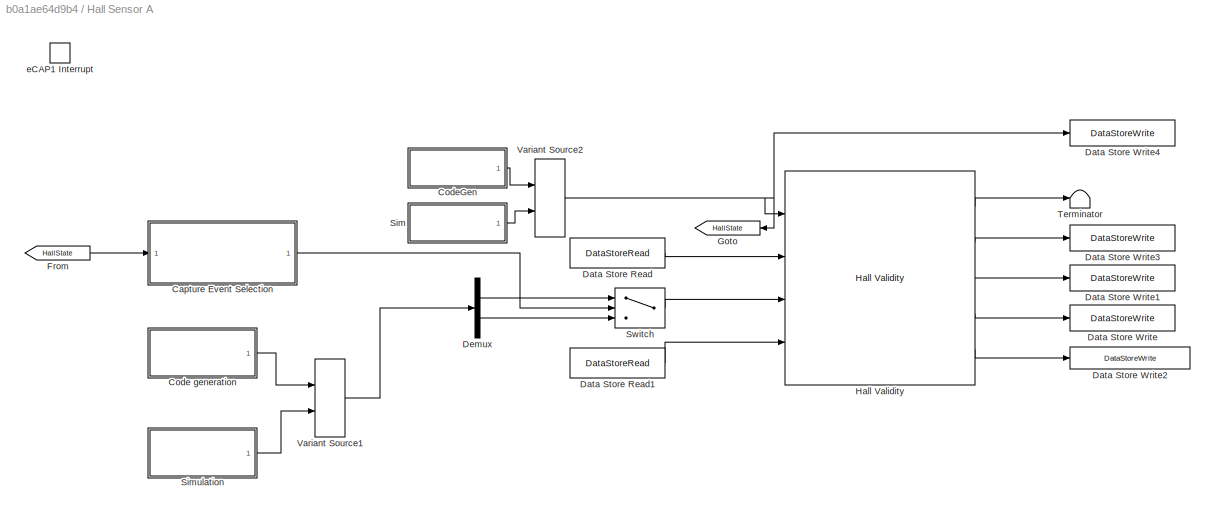
BLOCK [SubSystem] Hall Sensor A
  Ports = [0, 0, 0, 1]
  RequestExecContextInheritance = off
BLOCK [SubSystem] Hall Sensor A/Capture Event Selection
  Ports = [1, 1]
  RequestExecContextInheritance = off
BLOCK [Outport] Hall Sensor A/Capture Event Selection/Capture Event Select
BLOCK [Inport] Hall Sensor A/Capture Event Selection/Hall State
BLOCK [If] Hall Sensor A/Capture Event Selection/If
  IfExpression = (u1 == 5 | u1 == 3)
  Ports = [1, 2]
BLOCK [Merge] Hall Sensor A/Capture Event Selection/Merge
  Ports = [2, 1]
BLOCK [SubSystem] Hall Sensor A/Capture Event Selection/Output 0
  Ports = [0, 1, 0, 0, 0, 0, 0, 1]
  RequestExecContextInheritance = off
  TreatAsAtomicUnit = on
BLOCK [ActionPort] Hall Sensor A/Capture Event Selection/Output 0/Action Port
  ActionPortLabel = else
BLOCK [Constant] Hall Sensor A/Capture Event Selection/Output 0/Constant
  OutDataTypeStr = boolean
  Value = 0
BLOCK [Outport] Hall Sensor A/Capture Event Selection/Output 0/Out1
BLOCK [SubSystem] Hall Sensor A/Capture Event Selection/Output 1
  Ports = [0, 1, 0, 0, 0, 0, 0, 1]
  RequestExecContextInheritance = off
  TreatAsAtomicUnit = on
BLOCK [ActionPort] Hall Sensor A/Capture Event Selection/Output 1/Action Port
  ActionPortLabel = if((u1 == 5 | u1 == 3))
BLOCK [Constant] Hall Sensor A/Capture Event Selection/Output 1/Constant
  OutDataTypeStr = boolean
BLOCK [Outport] Hall Sensor A/Capture Event Selection/Output 1/Out1
BLOCK [SubSystem] Hall Sensor A/Code generation
  Ports = [0, 1]
  RequestExecContextInheritance = off
BLOCK [Reference] Hall Sensor A/Code generation/eCAP  REF=c280xlib/eCAP
  Ports = [0, 1]
  SourceBlock = c280xlib/eCAP
  SourceProductBaseCode = TIC2000
  SourceType = C28x eCAP
BLOCK [Outport] Hall Sensor A/Code generation/eCAP_Out
BLOCK [SubSystem] Hall Sensor A/CodeGen
  Ports = [0, 1]
  RequestExecContextInheritance = off
BLOCK [Reference] Hall Sensor A/CodeGen/Bitwise AND  REF=simulink/Logic and Bit
Operations/Bitwise
Operator
  Ports = [1, 1]
  SourceBlock = simulink/Logic and Bit\nOperations/Bitwise\nOperator
  SourceProductBaseCode = SL
  SourceType = Bitwise Operator
BLOCK [DataTypeConversion] Hall Sensor A/CodeGen/Data Type Conversion
  ConvertRealWorld = Stored Integer (SI)
  OutDataTypeStr = uint32
  RndMeth = Floor
  SaturateOnIntegerOverflow = off
BLOCK [Reference] Hall Sensor A/CodeGen/Memory Copy  REF=idelinklib_common/Memory Copy
  Ports = [0, 1]
  SourceBlock = idelinklib_common/Memory Copy
  SourceProductBaseCode = ME
  SourceType = Memory Copy
BLOCK [Outport] Hall Sensor A/CodeGen/Out1
BLOCK [ArithShift] Hall Sensor A/CodeGen/Shift Arithmetic
  BitShiftNumber = 24
  InputPortMap = u0
  Ports = [1, 1]
BLOCK [DataStoreRead] Hall Sensor A/Data Store Read
  DataStoreName = GlobalHallState
  IndexOptions = Index vector (dialog)
  Indices = 1
  OutputSizes = 1
  Ports = [0, 1]
  Priority = 1
BLOCK [DataStoreRead] Hall Sensor A/Data Store Read1
  DataStoreName = GlobalDirection
  IndexOptions = Index vector (dialog)
  Indices = 1
  OutputSizes = 1
  Ports = [0, 1]
BLOCK [DataStoreWrite] Hall Sensor A/Data Store Write
  DataStoreName = GlobalSpeedValidity
  IndexOptions = Index vector (dialog)
  Indices = 1
  OutputSizes = 1
  Ports = [1]
BLOCK [DataStoreWrite] Hall Sensor A/Data Store Write1
  DataStoreName = GlobalDirection
  IndexOptions = Index vector (dialog)
  Indices = 1
  OutputSizes = 1
  Ports = [1]
BLOCK [DataStoreWrite] Hall Sensor A/Data Store Write2
  DataStoreName = HallStateChangeFlag
  IndexOptions = Index vector (dialog)
  Indices = 1
  OutputSizes = 1
  Ports = [1]
BLOCK [DataStoreWrite] Hall Sensor A/Data Store Write3
  DataStoreName = GlobalSpeedCount
  IndexOptions = Index vector (dialog)
  Indices = 1
  OutputSizes = 1
  Ports = [1]
BLOCK [DataStoreWrite] Hall Sensor A/Data Store Write4
  DataStoreName = GlobalHallState
  IndexOptions = Index vector (dialog)
  Indices = 1
  OutputSizes = 1
  Ports = [1]
  Priority = 2
BLOCK [Demux] Hall Sensor A/Demux
  Outputs = 2
  Ports = [1, 2]
BLOCK [From] Hall Sensor A/From
  GotoTag = HallState
BLOCK [Goto] Hall Sensor A/Goto
  GotoTag = HallState
BLOCK [Reference] Hall Sensor A/Hall Validity  REF=mcbpositiondecoderlib/Hall Validity
  Ports = [4, 5]
  SourceBlock = mcbpositiondecoderlib/Hall Validity
  SourceProductBaseCode = MT
  SourceType = Hall Validity
BLOCK [SubSystem] Hall Sensor A/Sim
  Ports = [0, 1]
  RequestExecContextInheritance = off
BLOCK [DataTypeConversion] Hall Sensor A/Sim/Data Type Conversion
  ConvertRealWorld = Stored Integer (SI)
  OutDataTypeStr = uint32
  RndMeth = Floor
  SaturateOnIntegerOverflow = off
BLOCK [Ground] Hall Sensor A/Sim/Ground
BLOCK [Outport] Hall Sensor A/Sim/Out1
BLOCK [SubSystem] Hall Sensor A/Simulation
  Ports = [0, 1]
  RequestExecContextInheritance = off
BLOCK [Ground] Hall Sensor A/Simulation/Ground
BLOCK [Ground] Hall Sensor A/Simulation/Ground1
BLOCK [Mux] Hall Sensor A/Simulation/Mux
  DisplayOption = bar
  Inputs = 2
  Ports = [2, 1]
BLOCK [Outport] Hall Sensor A/Simulation/Out1
BLOCK [Switch] Hall Sensor A/Switch
  Criteria = u2 ~= 0
  InputSameDT = off
  SaturateOnIntegerOverflow = off
BLOCK [Terminator] Hall Sensor A/Terminator
BLOCK [VariantSource] Hall Sensor A/Variant Source1
  Ports = [2, 1]
  VariantControlMode = sim codegen switching
BLOCK [VariantSource] Hall Sensor A/Variant Source2
  Ports = [2, 1]
  VariantControlMode = sim codegen switching
BLOCK [TriggerPort] Hall Sensor A/eCAP1 Interrupt
  Ports = []
  StatesWhenEnabling = held
  TriggerType = function-call
  VariantControl = Variant
BLOCK [SubSystem] Hall Sensor B
  Ports = [0, 0, 0, 1]
  RequestExecContextInheritance = off
BLOCK [SubSystem] Hall Sensor B/Capture Event Selection
  Ports = [1, 1]
  RequestExecContextInheritance = off
BLOCK [Outport] Hall Sensor B/Capture Event Selection/Capture Event Select
BLOCK [Inport] Hall Sensor B/Capture Event Selection/Hall State
BLOCK [If] Hall Sensor B/Capture Event Selection/If
  IfExpression = (u1 == 3 | u1 == 6)
  Ports = [1, 2]
BLOCK [Merge] Hall Sensor B/Capture Event Selection/Merge
  Ports = [2, 1]
BLOCK [SubSystem] Hall Sensor B/Capture Event Selection/Output 0
  Ports = [0, 1, 0, 0, 0, 0, 0, 1]
  RequestExecContextInheritance = off
  TreatAsAtomicUnit = on
BLOCK [ActionPort] Hall Sensor B/Capture Event Selection/Output 0/Action Port
  ActionPortLabel = else
BLOCK [Constant] Hall Sensor B/Capture Event Selection/Output 0/Constant
  OutDataTypeStr = boolean
  Value = 0
BLOCK [Outport] Hall Sensor B/Capture Event Selection/Output 0/Out1
BLOCK [SubSystem] Hall Sensor B/Capture Event Selection/Output 1
  Ports = [0, 1, 0, 0, 0, 0, 0, 1]
  RequestExecContextInheritance = off
  TreatAsAtomicUnit = on
BLOCK [ActionPort] Hall Sensor B/Capture Event Selection/Output 1/Action Port
  ActionPortLabel = if((u1 == 3 | u1 == 6))
BLOCK [Constant] Hall Sensor B/Capture Event Selection/Output 1/Constant
  OutDataTypeStr = boolean
BLOCK [Outport] Hall Sensor B/Capture Event Selection/Output 1/Out1
BLOCK [SubSystem] Hall Sensor B/Code generation
  Ports = [0, 1]
  RequestExecContextInheritance = off
BLOCK [Reference] Hall Sensor B/Code generation/eCAP  REF=c280xlib/eCAP
  Ports = [0, 1]
  SourceBlock = c280xlib/eCAP
  SourceProductBaseCode = TIC2000
  SourceType = C28x eCAP
BLOCK [Outport] Hall Sensor B/Code generation/eCAP_Out
BLOCK [SubSystem] Hall Sensor B/CodeGen
  Ports = [0, 1]
  RequestExecContextInheritance = off
BLOCK [Reference] Hall Sensor B/CodeGen/Bitwise AND  REF=simulink/Logic and Bit
Operations/Bitwise
Operator
  Ports = [1, 1]
  SourceBlock = simulink/Logic and Bit\nOperations/Bitwise\nOperator
  SourceProductBaseCode = SL
  SourceType = Bitwise Operator
BLOCK [DataTypeConversion] Hall Sensor B/CodeGen/Data Type Conversion
  ConvertRealWorld = Stored Integer (SI)
  OutDataTypeStr = uint32
  RndMeth = Floor
  SaturateOnIntegerOverflow = off
BLOCK [Reference] Hall Sensor B/CodeGen/Memory Copy  REF=idelinklib_common/Memory Copy
  Ports = [0, 1]
  SourceBlock = idelinklib_common/Memory Copy
  SourceProductBaseCode = ME
  SourceType = Memory Copy
BLOCK [Outport] Hall Sensor B/CodeGen/Out1
BLOCK [ArithShift] Hall Sensor B/CodeGen/Shift Arithmetic
  BitShiftNumber = 24
  InputPortMap = u0
  Ports = [1, 1]
BLOCK [DataStoreRead] Hall Sensor B/Data Store Read
  DataStoreName = GlobalHallState
  IndexOptions = Index vector (dialog)
  Indices = 1
  OutputSizes = 1
  Ports = [0, 1]
  Priority = 1
BLOCK [DataStoreRead] Hall Sensor B/Data Store Read1
  DataStoreName = GlobalDirection
  IndexOptions = Index vector (dialog)
  Indices = 1
  OutputSizes = 1
  Ports = [0, 1]
BLOCK [DataStoreWrite] Hall Sensor B/Data Store Write
  DataStoreName = GlobalSpeedValidity
  IndexOptions = Index vector (dialog)
  Indices = 1
  OutputSizes = 1
  Ports = [1]
BLOCK [DataStoreWrite] Hall Sensor B/Data Store Write1
  DataStoreName = GlobalDirection
  IndexOptions = Index vector (dialog)
  Indices = 1
  OutputSizes = 1
  Ports = [1]
BLOCK [DataStoreWrite] Hall Sensor B/Data Store Write2
  DataStoreName = HallStateChangeFlag
  IndexOptions = Index vector (dialog)
  Indices = 1
  OutputSizes = 1
  Ports = [1]
BLOCK [DataStoreWrite] Hall Sensor B/Data Store Write3
  DataStoreName = GlobalSpeedCount
  IndexOptions = Index vector (dialog)
  Indices = 1
  OutputSizes = 1
  Ports = [1]
BLOCK [DataStoreWrite] Hall Sensor B/Data Store Write4
  DataStoreName = GlobalHallState
  IndexOptions = Index vector (dialog)
  Indices = 1
  OutputSizes = 1
  Ports = [1]
  Priority = 2
BLOCK [Demux] Hall Sensor B/Demux
  Outputs = 2
  Ports = [1, 2]
BLOCK [From] Hall Sensor B/From
  GotoTag = HallState
BLOCK [Goto] Hall Sensor B/Goto
  GotoTag = HallState
BLOCK [Reference] Hall Sensor B/Hall Validity  REF=mcbpositiondecoderlib/Hall Validity
  Ports = [4, 5]
  SourceBlock = mcbpositiondecoderlib/Hall Validity
  SourceProductBaseCode = MT
  SourceType = Hall Validity
BLOCK [SubSystem] Hall Sensor B/Sim
  Ports = [0, 1]
  RequestExecContextInheritance = off
BLOCK [DataTypeConversion] Hall Sensor B/Sim/Data Type Conversion
  ConvertRealWorld = Stored Integer (SI)
  OutDataTypeStr = uint32
  RndMeth = Floor
  SaturateOnIntegerOverflow = off
BLOCK [Ground] Hall Sensor B/Sim/Ground
BLOCK [Outport] Hall Sensor B/Sim/Out1
BLOCK [SubSystem] Hall Sensor B/Simulation
  Ports = [0, 1]
  RequestExecContextInheritance = off
BLOCK [Ground] Hall Sensor B/Simulation/Ground
BLOCK [Ground] Hall Sensor B/Simulation/Ground1
BLOCK [Mux] Hall Sensor B/Simulation/Mux
  DisplayOption = bar
  Inputs = 2
  Ports = [2, 1]
BLOCK [Outport] Hall Sensor B/Simulation/Out1
BLOCK [Switch] Hall Sensor B/Switch
  Criteria = u2 ~= 0
  InputSameDT = off
  SaturateOnIntegerOverflow = off
  Threshold = 3
BLOCK [Terminator] Hall Sensor B/Terminator
BLOCK [VariantSource] Hall Sensor B/Variant Source1
  Ports = [2, 1]
  VariantControlMode = sim codegen switching
BLOCK [VariantSource] Hall Sensor B/Variant Source2
  Ports = [2, 1]
  VariantControlMode = sim codegen switching
BLOCK [TriggerPort] Hall Sensor B/eCAP2 Interrupt
  Ports = []
  StatesWhenEnabling = held
  TriggerType = function-call
  VariantControl = Variant
BLOCK [SubSystem] Hall Sensor C
  Ports = [0, 0, 0, 1]
  RequestExecContextInheritance = off
BLOCK [SubSystem] Hall Sensor C/Capture Event Selection
  Ports = [1, 1]
  RequestExecContextInheritance = off
BLOCK [Outport] Hall Sensor C/Capture Event Selection/Capture Event Select
BLOCK [Inport] Hall Sensor C/Capture Event Selection/Hall State
BLOCK [If] Hall Sensor C/Capture Event Selection/If
  IfExpression = (u1 == 5 | u1 == 6)
  Ports = [1, 2]
BLOCK [Merge] Hall Sensor C/Capture Event Selection/Merge
  Ports = [2, 1]
BLOCK [SubSystem] Hall Sensor C/Capture Event Selection/Output 0
  Ports = [0, 1, 0, 0, 0, 0, 0, 1]
  RequestExecContextInheritance = off
  TreatAsAtomicUnit = on
BLOCK [ActionPort] Hall Sensor C/Capture Event Selection/Output 0/Action Port
  ActionPortLabel = else
BLOCK [Constant] Hall Sensor C/Capture Event Selection/Output 0/Constant
  OutDataTypeStr = boolean
  Value = 0
BLOCK [Outport] Hall Sensor C/Capture Event Selection/Output 0/Out1
BLOCK [SubSystem] Hall Sensor C/Capture Event Selection/Output 1
  Ports = [0, 1, 0, 0, 0, 0, 0, 1]
  RequestExecContextInheritance = off
  TreatAsAtomicUnit = on
BLOCK [ActionPort] Hall Sensor C/Capture Event Selection/Output 1/Action Port
  ActionPortLabel = if((u1 == 5 | u1 == 6))
BLOCK [Constant] Hall Sensor C/Capture Event Selection/Output 1/Constant
  OutDataTypeStr = boolean
BLOCK [Outport] Hall Sensor C/Capture Event Selection/Output 1/Out1
BLOCK [SubSystem] Hall Sensor C/Code generation
  Ports = [0, 1]
  RequestExecContextInheritance = off
BLOCK [Reference] Hall Sensor C/Code generation/eCAP  REF=c280xlib/eCAP
  Ports = [0, 1]
  SourceBlock = c280xlib/eCAP
  SourceProductBaseCode = TIC2000
  SourceType = C28x eCAP
BLOCK [Outport] Hall Sensor C/Code generation/eCAP_Out
BLOCK [SubSystem] Hall Sensor C/CodeGen
  Ports = [0, 1]
  RequestExecContextInheritance = off
BLOCK [Reference] Hall Sensor C/CodeGen/Bitwise AND  REF=simulink/Logic and Bit
Operations/Bitwise
Operator
  Ports = [1, 1]
  SourceBlock = simulink/Logic and Bit\nOperations/Bitwise\nOperator
  SourceProductBaseCode = SL
  SourceType = Bitwise Operator
BLOCK [DataTypeConversion] Hall Sensor C/CodeGen/Data Type Conversion
  ConvertRealWorld = Stored Integer (SI)
  OutDataTypeStr = uint32
  RndMeth = Floor
  SaturateOnIntegerOverflow = off
BLOCK [Reference] Hall Sensor C/CodeGen/Memory Copy  REF=idelinklib_common/Memory Copy
  Ports = [0, 1]
  SourceBlock = idelinklib_common/Memory Copy
  SourceProductBaseCode = ME
  SourceType = Memory Copy
BLOCK [Outport] Hall Sensor C/CodeGen/Out1
BLOCK [ArithShift] Hall Sensor C/CodeGen/Shift Arithmetic
  BitShiftNumber = 24
  InputPortMap = u0
  Ports = [1, 1]
BLOCK [DataStoreRead] Hall Sensor C/Data Store Read
  DataStoreName = GlobalHallState
  IndexOptions = Index vector (dialog)
  Indices = 1
  OutputSizes = 1
  Ports = [0, 1]
  Priority = 1
BLOCK [DataStoreRead] Hall Sensor C/Data Store Read1
  DataStoreName = GlobalDirection
  IndexOptions = Index vector (dialog)
  Indices = 1
  OutputSizes = 1
  Ports = [0, 1]
BLOCK [DataStoreWrite] Hall Sensor C/Data Store Write
  DataStoreName = GlobalSpeedValidity
  IndexOptions = Index vector (dialog)
  Indices = 1
  OutputSizes = 1
  Ports = [1]
BLOCK [DataStoreWrite] Hall Sensor C/Data Store Write1
  DataStoreName = GlobalDirection
  IndexOptions = Index vector (dialog)
  Indices = 1
  OutputSizes = 1
  Ports = [1]
BLOCK [DataStoreWrite] Hall Sensor C/Data Store Write2
  DataStoreName = HallStateChangeFlag
  IndexOptions = Index vector (dialog)
  Indices = 1
  OutputSizes = 1
  Ports = [1]
BLOCK [DataStoreWrite] Hall Sensor C/Data Store Write3
  DataStoreName = GlobalSpeedCount
  IndexOptions = Index vector (dialog)
  Indices = 1
  OutputSizes = 1
  Ports = [1]
BLOCK [DataStoreWrite] Hall Sensor C/Data Store Write4
  DataStoreName = GlobalHallState
  IndexOptions = Index vector (dialog)
  Indices = 1
  OutputSizes = 1
  Ports = [1]
  Priority = 2
BLOCK [Demux] Hall Sensor C/Demux
  Outputs = 2
  Ports = [1, 2]
BLOCK [From] Hall Sensor C/From1
  GotoTag = HallState
BLOCK [Goto] Hall Sensor C/Goto1
  GotoTag = HallState
BLOCK [Reference] Hall Sensor C/Hall Validity  REF=mcbpositiondecoderlib/Hall Validity
  Ports = [4, 5]
  SourceBlock = mcbpositiondecoderlib/Hall Validity
  SourceProductBaseCode = MT
  SourceType = Hall Validity
BLOCK [SubSystem] Hall Sensor C/Sim
  Ports = [0, 1]
  RequestExecContextInheritance = off
BLOCK [DataTypeConversion] Hall Sensor C/Sim/Data Type Conversion
  ConvertRealWorld = Stored Integer (SI)
  OutDataTypeStr = uint32
  RndMeth = Floor
  SaturateOnIntegerOverflow = off
BLOCK [Ground] Hall Sensor C/Sim/Ground
BLOCK [Outport] Hall Sensor C/Sim/Out1
BLOCK [SubSystem] Hall Sensor C/Simulation
  Ports = [0, 1]
  RequestExecContextInheritance = off
BLOCK [Ground] Hall Sensor C/Simulation/Ground
BLOCK [Ground] Hall Sensor C/Simulation/Ground1
BLOCK [Mux] Hall Sensor C/Simulation/Mux
  DisplayOption = bar
  Inputs = 2
  Ports = [2, 1]
BLOCK [Outport] Hall Sensor C/Simulation/Out1
BLOCK [Switch] Hall Sensor C/Switch
  Criteria = u2 ~= 0
  InputSameDT = off
  SaturateOnIntegerOverflow = off
  Threshold = 3
BLOCK [Terminator] Hall Sensor C/Terminator
BLOCK [VariantSource] Hall Sensor C/Variant Source
  Ports = [2, 1]
  VariantControlMode = sim codegen switching
BLOCK [VariantSource] Hall Sensor C/Variant Source1
  Ports = [2, 1]
  VariantControlMode = sim codegen switching
BLOCK [TriggerPort] Hall Sensor C/eCAP3 Interrupt
  Ports = []
  StatesWhenEnabling = held
  TriggerType = function-call
  VariantControl = Variant
BLOCK [SubSystem] Hardware Init
  Ports = []
  RequestExecContextInheritance = off
  TreatAsAtomicUnit = on
BLOCK [SubSystem] Hardware Init/Code Generation
  Ports = [1]
  RequestExecContextInheritance = off
BLOCK [Constant] Hardware Init/Code Generation/ADC Calib Enable
  Value = inverter.ADCOffsetCalibEnable
BLOCK [SubSystem] Hardware Init/Code Generation/Calculate ADC Offset 
  Ports = [0, 0, 1]
  Priority = 1001
  RequestExecContextInheritance = off
  TreatAsAtomicUnit = on
BLOCK [Constant] Hardware Init/Code Generation/Calculate ADC Offset /Constant
  Value = 8
BLOCK [Constant] Hardware Init/Code Generation/Calculate ADC Offset /Constant1
  OutDataTypeStr = Inherit: Inherit via back propagation
  Value = inverter.CtSensOffsetMax
BLOCK [Constant] Hardware Init/Code Generation/Calculate ADC Offset /Constant2
  OutDataTypeStr = Inherit: Inherit via back propagation
  Value = inverter.CtSensOffsetMin
BLOCK [Product] Hardware Init/Code Generation/Calculate ADC Offset /Divide
  Inputs = */
  OutDataTypeStr = uint16
  Ports = [2, 1]
BLOCK [Product] Hardware Init/Code Generation/Calculate ADC Offset /Divide1
  Inputs = */
  OutDataTypeStr = uint16
  Ports = [2, 1]
BLOCK [EnablePort] Hardware Init/Code Generation/Calculate ADC Offset /Enable
  Ports = []
BLOCK [SubSystem] Hardware Init/Code Generation/Calculate ADC Offset /For Iterator Subsystem
  Ports = [0, 2]
  RequestExecContextInheritance = off
  TreatAsAtomicUnit = on
BLOCK [Demux] Hardware Init/Code Generation/Calculate ADC Offset /For Iterator Subsystem/Demux
  Outputs = 2
  Ports = [1, 2]
BLOCK [ForIterator] Hardware Init/Code Generation/Calculate ADC Offset /For Iterator Subsystem/For Iterator
  IterationLimit = 16
  IterationVariableDataType = uint16
  Ports = [0, 1]
BLOCK [Reference] Hardware Init/Code Generation/Calculate ADC Offset /For Iterator Subsystem/IA//IB Measurement  REF=c2802xlib/ADC
  Ports = [0, 1]
  SourceBlock = c2802xlib/ADC
  SourceProductBaseCode = TIC2000
  SourceType = ADC Type 3-5
  UserDataPersistent = on
BLOCK [If] Hardware Init/Code Generation/Calculate ADC Offset /For Iterator Subsystem/If
  IfExpression = u1 > 8
  Ports = [1, 1]
  ShowElse = off
BLOCK [SubSystem] Hardware Init/Code Generation/Calculate ADC Offset /For Iterator Subsystem/If Action Subsystem
  Ports = [2, 2, 0, 0, 0, 0, 0, 1]
  RequestExecContextInheritance = off
  TreatAsAtomicUnit = on
BLOCK [ActionPort] Hardware Init/Code Generation/Calculate ADC Offset /For Iterator Subsystem/If Action Subsystem/Action Port
  ActionPortLabel = if(u1 > 8)
BLOCK [Inport] Hardware Init/Code Generation/Calculate ADC Offset /For Iterator Subsystem/If Action Subsystem/In1
BLOCK [Inport] Hardware Init/Code Generation/Calculate ADC Offset /For Iterator Subsystem/If Action Subsystem/In2
  Port = 2
BLOCK [Memory] Hardware Init/Code Generation/Calculate ADC Offset /For Iterator Subsystem/If Action Subsystem/Memory
  InheritSampleTime = on
  NameLocation = top
BLOCK [Memory] Hardware Init/Code Generation/Calculate ADC Offset /For Iterator Subsystem/If Action Subsystem/Memory1
  InheritSampleTime = on
  NameLocation = top
BLOCK [Outport] Hardware Init/Code Generation/Calculate ADC Offset /For Iterator Subsystem/If Action Subsystem/Out1
BLOCK [Outport] Hardware Init/Code Generation/Calculate ADC Offset /For Iterator Subsystem/If Action Subsystem/Out2
  Port = 2
BLOCK [Sum] Hardware Init/Code Generation/Calculate ADC Offset /For Iterator Subsystem/If Action Subsystem/Sum
  IconShape = rectangular
  Ports = [2, 1]
BLOCK [Sum] Hardware Init/Code Generation/Calculate ADC Offset /For Iterator Subsystem/If Action Subsystem/Sum1
  IconShape = rectangular
  Ports = [2, 1]
BLOCK [Outport] Hardware Init/Code Generation/Calculate ADC Offset /For Iterator Subsystem/Out1
BLOCK [Outport] Hardware Init/Code Generation/Calculate ADC Offset /For Iterator Subsystem/Out2
  Port = 2
BLOCK [If] Hardware Init/Code Generation/Calculate ADC Offset /If
  IfExpression = u1 > u3 & u1 < u2
  NumInputs = 3
  Ports = [3, 2]
BLOCK [SubSystem] Hardware Init/Code Generation/Calculate ADC Offset /If Action Subsystem
  Ports = [1, 0, 0, 0, 0, 0, 0, 1]
  RequestExecContextInheritance = off
  TreatAsAtomicUnit = on
BLOCK [ActionPort] Hardware Init/Code Generation/Calculate ADC Offset /If Action Subsystem/Action Port
  ActionPortLabel = if(u1 > 1500 & u1 < 2500)
BLOCK [DataStoreWrite] Hardware Init/Code Generation/Calculate ADC Offset /If Action Subsystem/Data Store Write1
  DataStoreName = IaOffset
  IndexOptions = Index vector (dialog)
  Indices = 1
  OutputSizes = 1
  Ports = [1]
BLOCK [Inport] Hardware Init/Code Generation/Calculate ADC Offset /If Action Subsystem/In1
BLOCK [SubSystem] Hardware Init/Code Generation/Calculate ADC Offset /If Action Subsystem1
  Ports = [0, 0, 0, 0, 0, 0, 0, 1]
  RequestExecContextInheritance = off
  TreatAsAtomicUnit = on
BLOCK [ActionPort] Hardware Init/Code Generation/Calculate ADC Offset /If Action Subsystem1/Action Port
  ActionPortLabel = else
BLOCK [Constant] Hardware Init/Code Generation/Calculate ADC Offset /If Action Subsystem1/Constant
  OutDataTypeStr = Inherit: Inherit via back propagation
  Value = inverter.CtSensAOffset
BLOCK [DataStoreWrite] Hardware Init/Code Generation/Calculate ADC Offset /If Action Subsystem1/Data Store Write1
  DataStoreName = IaOffset
  IndexOptions = Index vector (dialog)
  Indices = 1
  OutputSizes = 1
  Ports = [1]
BLOCK [SubSystem] Hardware Init/Code Generation/Calculate ADC Offset /If Action Subsystem2
  Ports = [1, 0, 0, 0, 0, 0, 0, 1]
  RequestExecContextInheritance = off
  TreatAsAtomicUnit = on
BLOCK [ActionPort] Hardware Init/Code Generation/Calculate ADC Offset /If Action Subsystem2/Action Port
  ActionPortLabel = if(u1 > 1500 & u1 < 2500)
BLOCK [DataStoreWrite] Hardware Init/Code Generation/Calculate ADC Offset /If Action Subsystem2/Data Store Write2
  DataStoreName = IbOffset
  IndexOptions = Index vector (dialog)
  Indices = 1
  OutputSizes = 1
  Ports = [1]
BLOCK [Inport] Hardware Init/Code Generation/Calculate ADC Offset /If Action Subsystem2/In1
BLOCK [SubSystem] Hardware Init/Code Generation/Calculate ADC Offset /If Action Subsystem3
  Ports = [0, 0, 0, 0, 0, 0, 0, 1]
  RequestExecContextInheritance = off
  TreatAsAtomicUnit = on
BLOCK [ActionPort] Hardware Init/Code Generation/Calculate ADC Offset /If Action Subsystem3/Action Port
  ActionPortLabel = else
BLOCK [Constant] Hardware Init/Code Generation/Calculate ADC Offset /If Action Subsystem3/Constant1
  OutDataTypeStr = Inherit: Inherit via back propagation
  Value = inverter.CtSensBOffset
BLOCK [DataStoreWrite] Hardware Init/Code Generation/Calculate ADC Offset /If Action Subsystem3/Data Store Write2
  DataStoreName = IbOffset
  IndexOptions = Index vector (dialog)
  Indices = 1
  OutputSizes = 1
  Ports = [1]
BLOCK [If] Hardware Init/Code Generation/Calculate ADC Offset /If1
  IfExpression = u1 > u3 & u1 < u2
  NumInputs = 3
  Ports = [3, 2]
BLOCK [SubSystem] Hardware Init/Code Generation/DRV Enable
  Ports = [1]
  Priority = 1
  RequestExecContextInheritance = off
BLOCK [Reference] Hardware Init/Code Generation/DRV Enable/Digital Output2  REF=c2806xlib/Digital Output
  Ports = [1]
  SourceBlock = c2806xlib/Digital Output
  SourceProductBaseCode = TIC2000
  SourceType = C2806x GPIO Digital Output
  UserDataPersistent = on
BLOCK [Inport] Hardware Init/Code Generation/DRV Enable/Input
BLOCK [Mux] Hardware Init/Code Generation/DRV Enable/Mux
  DisplayOption = bar
  Inputs = 3
  Ports = [3, 1]
BLOCK [SubSystem] Hardware Init/Code Generation/Default ADC Offset
  Ports = [0, 0, 1]
  Priority = 1001
  RequestExecContextInheritance = off
  TreatAsAtomicUnit = on
BLOCK [Constant] Hardware Init/Code Generation/Default ADC Offset/Constant
  OutDataTypeStr = Inherit: Inherit via back propagation
  Value = inverter.CtSensAOffset
BLOCK [Constant] Hardware Init/Code Generation/Default ADC Offset/Constant1
  OutDataTypeStr = Inherit: Inherit via back propagation
  Value = inverter.CtSensBOffset
BLOCK [DataStoreWrite] Hardware Init/Code Generation/Default ADC Offset/Data Store Write1
  DataStoreName = IaOffset
  IndexOptions = Index vector (dialog)
  Indices = 1
  OutputSizes = 1
  Ports = [1]
BLOCK [DataStoreWrite] Hardware Init/Code Generation/Default ADC Offset/Data Store Write2
  DataStoreName = IbOffset
  IndexOptions = Index vector (dialog)
  Indices = 1
  OutputSizes = 1
  Ports = [1]
BLOCK [EnablePort] Hardware Init/Code Generation/Default ADC Offset/Enable
  Ports = []
BLOCK [Inport] Hardware Init/Code Generation/Input
BLOCK [Logic] Hardware Init/Code Generation/NOT
  AllPortsSameDT = off
  IconShape = distinctive
  Operator = NOT
  OutDataTypeStr = boolean
  Ports = [1, 1]
BLOCK [Constant] Hardware Init/Constant
BLOCK [EventListener] Hardware Init/Event Listener
  DisableCoverage = on
  EventName = reset
BLOCK [SubSystem] Hardware Init/Simulation
  Ports = [1]
  RequestExecContextInheritance = off
BLOCK [Inport] Hardware Init/Simulation/Input
BLOCK [Terminator] Hardware Init/Simulation/Terminator
BLOCK [VariantSink] Hardware Init/Variant Sink
  Ports = [1, 2]
  VariantControlMode = sim codegen switching
BLOCK [SubSystem] Heartbeat LED
  Ports = []
  RequestExecContextInheritance = off
  TreatAsAtomicUnit = on
BLOCK [SubSystem] Heartbeat LED/Code generation
  Ports = [1]
  RequestExecContextInheritance = off
BLOCK [Reference] Heartbeat LED/Code generation/Digital Output1  REF=c2806xlib/Digital Output
  Ports = [1]
  SourceBlock = c2806xlib/Digital Output
  SourceProductBaseCode = TIC2000
  SourceType = C2806x GPIO Digital Output
  UserDataPersistent = on
BLOCK [Inport] Heartbeat LED/Code generation/In1
BLOCK [Constant] Heartbeat LED/RED_LED
  OutDataTypeStr = uint16
  SampleTime = 0.5
BLOCK [SubSystem] Heartbeat LED/Simulation
  Ports = [1]
  RequestExecContextInheritance = off
BLOCK [Inport] Heartbeat LED/Simulation/In1
BLOCK [Terminator] Heartbeat LED/Simulation/Simulation_Terminator
BLOCK [VariantSink] Heartbeat LED/Variant Sink
  Ports = [1, 2]
  VariantControlMode = sim codegen switching
BLOCK [SubSystem] Inverter and Motor - Plant Model
  Ports = [1, 2]
  RTWSystemCode = Reusable function
  RequestExecContextInheritance = off
BLOCK [SubSystem] Inverter and Motor - Plant Model/Codegeneration
  Ports = [1, 2]
  RequestExecContextInheritance = off
BLOCK [Inport] Inverter and Motor - Plant Model/Codegeneration/Duty_Cycles
BLOCK [Ground] Inverter and Motor - Plant Model/Codegeneration/Ground
BLOCK [Ground] Inverter and Motor - Plant Model/Codegeneration/Ground1
BLOCK [Outport] Inverter and Motor - Plant Model/Codegeneration/Iab_fb_Sim
  VectorParamsAs1DForOutWhenUnconnected = off
BLOCK [Outport] Inverter and Motor - Plant Model/Codegeneration/Pos_fb_Sim
  Port = 2
  VectorParamsAs1DForOutWhenUnconnected = off
BLOCK [Terminator] Inverter and Motor - Plant Model/Codegeneration/Terminator
BLOCK [Inport] Inverter and Motor - Plant Model/Duty_Cycles
BLOCK [Outport] Inverter and Motor - Plant Model/Iab_Sim
  VectorParamsAs1DForOutWhenUnconnected = off
BLOCK [Outport] Inverter and Motor - Plant Model/Pos_Sim
  Port = 2
  VectorParamsAs1DForOutWhenUnconnected = off
BLOCK [SubSystem] Inverter and Motor - Plant Model/Simulation
  Ports = [1, 2]
  RequestExecContextInheritance = off
BLOCK [Inport] Inverter and Motor - Plant Model/Simulation/Duty_Cycles
BLOCK [Outport] Inverter and Motor - Plant Model/Simulation/Iab_fb_Sim
  VectorParamsAs1DForOutWhenUnconnected = off
BLOCK [SubSystem] Inverter and Motor - Plant Model/Simulation/Inverter
  Ports = [1, 1]
  RequestExecContextInheritance = off
BLOCK [Reference] Inverter and Motor - Plant Model/Simulation/Inverter/Average-Value Inverter  REF=mcbplantlib/Average-Value Inverter
  Ports = [2, 1]
  SourceBlock = mcbplantlib/Average-Value Inverter
  SourceProductBaseCode = MT
  SourceType = Average Value Inverter
BLOCK [Constant] Inverter and Motor - Plant Model/Simulation/Inverter/Constant2
  OutDataTypeStr = single
  SampleTime = -1
  Value = inverter.V_dc
BLOCK [DataTypeConversion] Inverter and Motor - Plant Model/Simulation/Inverter/Data Type Conversion1
  OutDataTypeStr = single
  RndMeth = Simplest
  SaturateOnIntegerOverflow = off
BLOCK [Inport] Inverter and Motor - Plant Model/Simulation/Inverter/Duty_abc
BLOCK [RateTransition] Inverter and Motor - Plant Model/Simulation/Inverter/Rate Transition3
  Deterministic = off
  OutPortSampleTime = Ts_inverter
BLOCK [Outport] Inverter and Motor - Plant Model/Simulation/Inverter/Vabc
  VectorParamsAs1DForOutWhenUnconnected = off
BLOCK [SubSystem] Inverter and Motor - Plant Model/Simulation/Load_Profile (Torque)
  Ports = [0, 1]
  RequestExecContextInheritance = off
BLOCK [DataTypeConversion] Inverter and Motor - Plant Model/Simulation/Load_Profile (Torque)/Data Type Conversion
  OutDataTypeStr = single
  RndMeth = Floor
  SaturateOnIntegerOverflow = off
BLOCK [Reference] Inverter and Motor - Plant Model/Simulation/Load_Profile (Torque)/IIR Filter  REF=mcbcontrolslib/IIR Filter
  Ports = [1, 1]
  SourceBlock = mcbcontrolslib/IIR Filter
  SourceProductBaseCode = MT
  SourceType = IIR Filter
BLOCK [Outport] Inverter and Motor - Plant Model/Simulation/Load_Profile (Torque)/Load_Trq
  VectorParamsAs1DForOutWhenUnconnected = off
BLOCK [Step] Inverter and Motor - Plant Model/Simulation/Load_Profile (Torque)/T_load
  After = 0.5*pmsm.T_rated
  Before = 0.05*pmsm.T_rated
  SampleTime = Ts_simulink
  Time = 5
BLOCK [Outport] Inverter and Motor - Plant Model/Simulation/Pos_fb_Sim
  Port = 2
  VectorParamsAs1DForOutWhenUnconnected = off
BLOCK [RateTransition] Inverter and Motor - Plant Model/Simulation/RT1
  Deterministic = off
  OutPortSampleTime = Ts_simulink
BLOCK [RateTransition] Inverter and Motor - Plant Model/Simulation/RT3
  Deterministic = off
  OutPortSampleTime = Ts_simulink
BLOCK [RateTransition] Inverter and Motor - Plant Model/Simulation/Rate Transition
  Deterministic = off
  OutPortSampleTime = Ts_motor
BLOCK [RateTransition] Inverter and Motor - Plant Model/Simulation/Rate Transition1
  Deterministic = off
  OutPortSampleTime = Ts_motor
BLOCK [SubSystem] Inverter and Motor - Plant Model/Simulation/Sensor_Measurements
  Ports = [2, 2]
  RequestExecContextInheritance = off
BLOCK [Sum] Inverter and Motor - Plant Model/Simulation/Sensor_Measurements/Add Offset
  IconShape = rectangular
  Ports = [2, 1]
  RndMeth = Simplest
BLOCK [BusSelector] Inverter and Motor - Plant Model/Simulation/Sensor_Measurements/Bus Selector
  OutputSignals = MtrPos
  Ports = [1, 1]
BLOCK [Constant] Inverter and Motor - Plant Model/Simulation/Sensor_Measurements/Constant2
  OutDataTypeStr = single
  SampleTime = -1
  Value = 2*pi
BLOCK [DataTypeConversion] Inverter and Motor - Plant Model/Simulation/Sensor_Measurements/Data Type Conversion2
  OutDataTypeStr = single
  RndMeth = Simplest
  SaturateOnIntegerOverflow = off
BLOCK [DataTypeConversion] Inverter and Motor - Plant Model/Simulation/Sensor_Measurements/Data Type Conversion4
  OutDataTypeStr = single
  RndMeth = Simplest
  SaturateOnIntegerOverflow = off
BLOCK [Delay] Inverter and Motor - Plant Model/Simulation/Sensor_Measurements/Delay1
  DelayLength = PI_params.delay_Currents
  InputPortMap = u0
  Ports = [1, 1]
BLOCK [Delay] Inverter and Motor - Plant Model/Simulation/Sensor_Measurements/Delay2
  DelayLength = PI_params.delay_Position
  InputPortMap = u0
  Ports = [1, 1]
BLOCK [Gain] Inverter and Motor - Plant Model/Simulation/Sensor_Measurements/Get ADC Count
  Gain = target.ADC_MaxCount/target.ADC_Vref
  OutDataTypeStr = uint16
  OutMax = target.ADC_MaxCount
  OutMin = 0
  RndMeth = Simplest
BLOCK [Gain] Inverter and Motor - Plant Model/Simulation/Sensor_Measurements/Get Current Sense Voltage
  Gain = inverter.invertingAmp * inverter.ISenseVoltPerAmp
  OutDataTypeStr = Inherit: Same as input
  RndMeth = Simplest
BLOCK [Gain] Inverter and Motor - Plant Model/Simulation/Sensor_Measurements/Get_PU1
  Gain = 1/(2*pi)
  OutDataTypeStr = dataType
  RndMeth = Simplest
BLOCK [Outport] Inverter and Motor - Plant Model/Simulation/Sensor_Measurements/Iab_fb
  VectorParamsAs1DForOutWhenUnconnected = off
BLOCK [Inport] Inverter and Motor - Plant Model/Simulation/Sensor_Measurements/Info
BLOCK [Math] Inverter and Motor - Plant Model/Simulation/Sensor_Measurements/Mod
  Operator = mod
  Ports = [2, 1]
BLOCK [Gain] Inverter and Motor - Plant Model/Simulation/Sensor_Measurements/Offset voltage
  Gain = target.ADC_Vref / target.ADC_MaxCount
  RndMeth = Simplest
BLOCK [Inport] Inverter and Motor - Plant Model/Simulation/Sensor_Measurements/PhaseCurr
  Port = 2
BLOCK [Outport] Inverter and Motor - Plant Model/Simulation/Sensor_Measurements/Pos_fb
  Port = 2
  VectorParamsAs1DForOutWhenUnconnected = off
BLOCK [Saturate] Inverter and Motor - Plant Model/Simulation/Sensor_Measurements/Saturate at ADC Vref
  LowerLimit = 0
  UpperLimit = target.ADC_Vref
BLOCK [Saturate] Inverter and Motor - Plant Model/Simulation/Sensor_Measurements/Saturate at inverter Vref
  LowerLimit = 0
  UpperLimit = inverter.ISenseVref
BLOCK [Selector] Inverter and Motor - Plant Model/Simulation/Sensor_Measurements/Selector
  IndexOptions = Index vector (dialog)
  Indices = [1 2]
  InputPortWidth = 3
  OutputSizes = 1
  Ports = [1, 1]
BLOCK [Constant] Inverter and Motor - Plant Model/Simulation/Sensor_Measurements/~1.65V in ADC counts
  OutDataTypeStr = uint16
  SampleTime = -1
  Value = [inverter.CtSensAOffset inverter.CtSensBOffset]
BLOCK [Reference] Inverter and Motor - Plant Model/Simulation/Surface Mount PMSM  REF=autolibpmsmexterior/Surface Mount PMSM
  Ports = [2, 3]
  SourceBlock = autolibpmsmexterior/Surface Mount PMSM
  SourceProductBaseCode = PW,DR,MT,VE
  SourceType = Surface Mount PMSM
BLOCK [Terminator] Inverter and Motor - Plant Model/Simulation/Terminator
BLOCK [VariantSink] Inverter and Motor - Plant Model/Variant Sink
  Ports = [1, 2]
  VariantControlMode = sim codegen switching
BLOCK [VariantSource] Inverter and Motor - Plant Model/Variant Source
  Ports = [2, 1]
  VariantControlMode = sim codegen switching
BLOCK [VariantSource] Inverter and Motor - Plant Model/Variant Source1
  Ports = [2, 1]
  VariantControlMode = sim codegen switching
BLOCK [RateTransition] RT
  Deterministic = off
BLOCK [RateTransition] RT1
  Deterministic = off
  OutPortSampleTime = Ts_speed
BLOCK [RateTransition] RT3
  Deterministic = off
BLOCK [RateTransition] RT4
  Deterministic = off
BLOCK [RateTransition] RT5
  Deterministic = off
BLOCK [RateTransition] RT6
  Deterministic = off
BLOCK [SubSystem] Serial Receive
  Ports = [0, 1, 0, 1]
  RTWMemSecFuncExecute = code_ramfuncs
  RequestExecContextInheritance = off
  SystemSampleTime = 1e-3
BLOCK [SubSystem] Serial Receive/Code Generation
  Ports = [0, 1]
  RequestExecContextInheritance = off
BLOCK [Outport] Serial Receive/Code Generation/Data
BLOCK [Reference] Serial Receive/Code Generation/SCI Receive  REF=c280xlib/SCI Receive
  Ports = [0, 1]
  SourceBlock = c280xlib/SCI Receive
  SourceProductBaseCode = TIC2000
  SourceType = C28x SCI Receive
BLOCK [DataStoreWrite] Serial Receive/Data Store Write
  DataStoreName = Enable
  IndexOptions = Index vector (dialog)
  Indices = 1
  OutputSizes = 1
  Ports = [1]
BLOCK [DataTypeConversion] Serial Receive/Data Type Conversion1
  OutDataTypeStr = dataType
  RndMeth = Simplest
  SaturateOnIntegerOverflow = off
BLOCK [DataTypeConversion] Serial Receive/Data Type Conversion3
  OutDataTypeStr = boolean
  RndMeth = Simplest
  SaturateOnIntegerOverflow = off
BLOCK [SubSystem] Serial Receive/Data_Conditioning
  Ports = [1, 1]
  RequestExecContextInheritance = off
BLOCK [DataTypeConversion] Serial Receive/Data_Conditioning/Data Type Conversion1
  OutDataTypeStr = single
  RndMeth = Simplest
  SaturateOnIntegerOverflow = off
BLOCK [DataTypeConversion] Serial Receive/Data_Conditioning/Data Type Conversion2
  ConvertRealWorld = Stored Integer (SI)
  OutDataTypeStr = fixdt(1,16,12)
  RndMeth = Simplest
  SaturateOnIntegerOverflow = off
BLOCK [Inport] Serial Receive/Data_Conditioning/In1
BLOCK [Outport] Serial Receive/Data_Conditioning/Out1
  VectorParamsAs1DForOutWhenUnconnected = off
BLOCK [Demux] Serial Receive/Demux
  Outputs = 2
  Ports = [1, 2]
BLOCK [Outport] Serial Receive/Desired Speed
  VectorParamsAs1DForOutWhenUnconnected = off
BLOCK [TriggerPort] Serial Receive/SCI_Rx_INT
  Ports = []
  StatesWhenEnabling = held
  TriggerType = function-call
  VariantControl = Variant
BLOCK [SubSystem] Serial Receive/Simulation
  Ports = [0, 1]
  RequestExecContextInheritance = off
BLOCK [Outport] Serial Receive/Simulation/Data
BLOCK [DataTypeConversion] Serial Receive/Simulation/Data Type Conversion
  OutDataTypeStr = fixdt(1,16,12)
  RndMeth = Simplest
  SaturateOnIntegerOverflow = off
BLOCK [DataTypeConversion] Serial Receive/Simulation/Data Type Conversion2
  OutDataTypeStr = single
  RndMeth = Simplest
  SaturateOnIntegerOverflow = off
BLOCK [DataTypeConversion] Serial Receive/Simulation/Data Type Conversion3
  ConvertRealWorld = Stored Integer (SI)
  OutDataTypeStr = uint32
  RndMeth = Simplest
  SaturateOnIntegerOverflow = off
BLOCK [DataTypeConversion] Serial Receive/Simulation/Data Type Conversion4
  OutDataTypeStr = single
  RndMeth = Simplest
  SaturateOnIntegerOverflow = off
BLOCK [Constant] Serial Receive/Simulation/Enable
  OutDataTypeStr = dataType
  SampleTime = -1
BLOCK [Mux] Serial Receive/Simulation/Mux
  DisplayOption = bar
  Inputs = 2
  Ports = [2, 1]
BLOCK [Step] Serial Receive/Simulation/Reversal
  Time = 6
BLOCK [Constant] Serial Receive/Simulation/Speed_Ref_Final (rpm)
  OutDataTypeStr = dataType
  SampleTime = -1
  Value = -0.8*pmsm.N_base
BLOCK [Step] Serial Receive/Simulation/Speed_Ref_Init (rpm)
  After = 0.8*pmsm.N_base
  Before = 0.2*pmsm.N_base
  Time = 4
BLOCK [Switch] Serial Receive/Simulation/Switch
  Criteria = u2 > Threshold
  InputSameDT = off
  SaturateOnIntegerOverflow = off
BLOCK [Gain] Serial Receive/Simulation/rpm2PU
  Gain = 1/pmsm.N_base
  OutDataTypeStr = Inherit: Same as input
  RndMeth = Simplest
BLOCK [VariantSource] Serial Receive/Variant Source
  Ports = [2, 1]
  VariantControlMode = sim codegen switching
BLOCK [SubSystem] Simulation
  Ports = [0, 1]
  RequestExecContextInheritance = off
BLOCK [Reference] Simulation/Function-Call Generator  REF=simulink/Ports &
Subsystems/Function-Call
Generator
  Ports = [0, 1]
  SourceBlock = simulink/Ports &\nSubsystems/Function-Call\nGenerator
  SourceProductBaseCode = SL
  SourceType = Function-Call Generator
BLOCK [Reference] Simulation/Function-Call Generator1  REF=simulink/Ports &
Subsystems/Function-Call
Generator
  Ports = [0, 1]
  SourceBlock = simulink/Ports &\nSubsystems/Function-Call\nGenerator
  SourceProductBaseCode = SL
  SourceType = Function-Call Generator
BLOCK [Reference] Simulation/Function-Call Generator2  REF=simulink/Ports &
Subsystems/Function-Call
Generator
  Ports = [0, 1]
  SourceBlock = simulink/Ports &\nSubsystems/Function-Call\nGenerator
  SourceProductBaseCode = SL
  SourceType = Function-Call Generator
BLOCK [Reference] Simulation/Function-Call Generator3  REF=simulink/Ports &
Subsystems/Function-Call
Generator
  Ports = [0, 1]
  SourceBlock = simulink/Ports &\nSubsystems/Function-Call\nGenerator
  SourceProductBaseCode = SL
  SourceType = Function-Call Generator
BLOCK [Outport] Simulation/HW_INT
BLOCK [Mux] Simulation/Mux
  DisplayOption = bar
  Inputs = 5
  Ports = [5, 1]
BLOCK [Reference] Simulation/SCI_Rx_INT  REF=simulink/Ports &
Subsystems/Function-Call
Generator
  Ports = [0, 1]
  SourceBlock = simulink/Ports &\nSubsystems/Function-Call\nGenerator
  SourceProductBaseCode = SL
  SourceType = Function-Call Generator
BLOCK [SubSystem] Speed Control
  Ports = [2, 1]
  RequestExecContextInheritance = off
  SystemSampleTime = Ts_speed
  TreatAsAtomicUnit = on
BLOCK [Constant] Speed Control/Id_ref
  OutDataTypeStr = dataType
  SampleTime = Ts_speed
  Value = 0
BLOCK [Outport] Speed Control/IdqRef_PU
  VectorParamsAs1DForOutWhenUnconnected = off
BLOCK [Mux] Speed Control/Mux1
  DisplayOption = bar
  Inputs = 2
  Ports = [2, 1]
BLOCK [SubSystem] Speed Control/PI_Controller_Speed
  Ports = [2, 1]
  RequestExecContextInheritance = off
BLOCK [DataStoreRead] Speed Control/PI_Controller_Speed/Data Store Read1
  DataStoreName = Enable
  IndexOptions = Index vector (dialog)
  Indices = 1
  OutputSizes = 1
  Ports = [0, 1]
BLOCK [Reference] Speed Control/PI_Controller_Speed/Discrete PI Controller with anti-windup & reset  REF=slpidlib/PID Controller
  Ports = [5, 1]
  SourceBlock = slpidlib/PID Controller
  SourceProductBaseCode = SL
  SourceType = PID 1dof
BLOCK [Outport] Speed Control/PI_Controller_Speed/Iq_ref
  VectorParamsAs1DForOutWhenUnconnected = off
BLOCK [Constant] Speed Control/PI_Controller_Speed/Ki1
  NameLocation = top
  OutDataTypeStr = dataType
  SampleTime = -1
  Value = PI_params.Ki_speed*Ts_speed
BLOCK [Constant] Speed Control/PI_Controller_Speed/Ki2
  NameLocation = top
  OutDataTypeStr = dataType
  SampleTime = -1
  Value = 0
BLOCK [Constant] Speed Control/PI_Controller_Speed/Kp1
  NameLocation = top
  OutDataTypeStr = dataType
  SampleTime = -1
  Value = PI_params.Kp_speed
BLOCK [Logic] Speed Control/PI_Controller_Speed/Logical Operator
  AllPortsSameDT = off
  IconShape = distinctive
  Operator = NOT
  OutDataTypeStr = boolean
  Ports = [1, 1]
BLOCK [Inport] Speed Control/PI_Controller_Speed/N_fb
  Port = 2
BLOCK [Inport] Speed Control/PI_Controller_Speed/N_ref
BLOCK [Sum] Speed Control/PI_Controller_Speed/Sum
  AccumDataTypeStr = Inherit: Same as first input
  Inputs = |+-
  OutDataTypeStr = Inherit: Same as first input
  Ports = [2, 1]
  RndMeth = Simplest
BLOCK [Inport] Speed Control/Speed_Meas_PU
  Port = 2
BLOCK [Inport] Speed Control/Speed_Ref_PU
BLOCK [SubSystem] Speed Control/Speed_Ref_Selector
  Ports = [2, 1]
  RequestExecContextInheritance = off
BLOCK [DataStoreRead] Speed Control/Speed_Ref_Selector/Data Store Read1
  DataStoreName = Enable
  IndexOptions = Index vector (dialog)
  Indices = 1
  OutputSizes = 1
  Ports = [0, 1]
BLOCK [Reference] Speed Control/Speed_Ref_Selector/IIR Filter  REF=mcbcontrolslib/IIR Filter
  Ports = [1, 1]
  SourceBlock = mcbcontrolslib/IIR Filter
  SourceProductBaseCode = MT
  SourceType = IIR Filter
BLOCK [Inport] Speed Control/Speed_Ref_Selector/Speed_Ref_In
BLOCK [Inport] Speed Control/Speed_Ref_Selector/Speed_Ref_Open
  Port = 2
BLOCK [Outport] Speed Control/Speed_Ref_Selector/Speed_Ref_PU
BLOCK [Switch] Speed Control/Speed_Ref_Selector/Switch
  Criteria = u2 > Threshold
  InputSameDT = off
  SaturateOnIntegerOverflow = off
  Threshold = 0.5
BLOCK [VariantSource] Variant Source1
  OutputFunctionCall = on
  Ports = [2, 1]
  VariantControlMode = sim codegen switching
ANNOTATION (root): <copyright redacted>
ANNOTATION (root): Explore more: 1. Edit motor & inverter parameters 2. Use offset computatation model to find out position offset 3. Update offset in Init script to variable ' pmsm.PositionOffset' 4. Build, Deploy & Start 5. Control motor via host model 6. Learn more about this example.
ANNOTATION (root): Field-Oriented Control for PMSM with Hall sensor
ANNOTATION (root): Note: This example requires a TI F28069m with DRV8312 connected to a PMSM Motor with Hall Sensor
ANNOTATION Current Control/Data_Logging: Fast Serial Data Monitoring (16-bit)
ANNOTATION Current Control/Input Scaling/Read_Sensor (codegen)/Calculate Position from Hall: Note: The glitch filter rejects lower values of the speed count input, which resutls in motor speed greater than 10 times Base speed
ANNOTATION Hardware Init/Code Generation/DRV Enable: Enable PWM output
ANNOTATION Heartbeat LED: Heartbeat LED 1HZ
ANNOTATION Heartbeat LED/Code generation: Heartbeat LED 1HZ
ANNOTATION Inverter and Motor - Plant Model/Simulation/Sensor_Measurements: Delays
ANNOTATION Inverter and Motor - Plant Model/Simulation/Sensor_Measurements: Scaling
LINE Code Generation/Hardware Interrupt:1 -> Code Generation/HW_INT:1
LINE Code Generation:1 -> Variant Source1:1
LINE Current Control/Control_System/Clarke Transform:1 -> Current Control/Control_System/Park Transform:1
LINE Current Control/Control_System/Clarke Transform:2 -> Current Control/Control_System/Park Transform:2
LINE Current Control/Control_System/Current_Controllers/DQ Limiter:1 -> Current Control/Control_System/Current_Controllers/Vd_ref:1
LINE Current Control/Control_System/Current_Controllers/DQ Limiter:2 -> Current Control/Control_System/Current_Controllers/Vq_ref:1
LINE Current Control/Control_System/Current_Controllers/DQ Limiter:3 -> Current Control/Control_System/Current_Controllers/Terminator:1
NET Current Control/Control_System/Current_Controllers/Demux:1 -> Current Control/Control_System/Current_Controllers/Mux:1, Current Control/Control_System/Current_Controllers/PI_Controller_Id:1
NET Current Control/Control_System/Current_Controllers/Demux:2 -> Current Control/Control_System/Current_Controllers/Mux:3, Current Control/Control_System/Current_Controllers/PI_Controller_Iq:1
NET Current Control/Control_System/Current_Controllers/Id:1 -> Current Control/Control_System/Current_Controllers/Mux:2, Current Control/Control_System/Current_Controllers/PI_Controller_Id:2
LINE Current Control/Control_System/Current_Controllers/Idq_ref_PU:1 -> Current Control/Control_System/Current_Controllers/Demux:1
NET Current Control/Control_System/Current_Controllers/Iq:1 -> Current Control/Control_System/Current_Controllers/Mux:4, Current Control/Control_System/Current_Controllers/PI_Controller_Iq:2
LINE Current Control/Control_System/Current_Controllers/Mux:1 -> Current Control/Control_System/Current_Controllers/Idq:1
LINE Current Control/Control_System/Current_Controllers/PI_Controller_Id/Data Store Read1:1 -> Current Control/Control_System/Current_Controllers/PI_Controller_Id/Logical Operator:1
LINE Current Control/Control_System/Current_Controllers/PI_Controller_Id/Discrete PI Controller with anti-windup & reset:1 -> Current Control/Control_System/Current_Controllers/PI_Controller_Id/V_ref:1
LINE Current Control/Control_System/Current_Controllers/PI_Controller_Id/I_fb:1 -> Current Control/Control_System/Current_Controllers/PI_Controller_Id/Sum:2
LINE Current Control/Control_System/Current_Controllers/PI_Controller_Id/I_ref:1 -> Current Control/Control_System/Current_Controllers/PI_Controller_Id/Sum:1
LINE Current Control/Control_System/Current_Controllers/PI_Controller_Id/Ki1:1 -> Current Control/Control_System/Current_Controllers/PI_Controller_Id/Discrete PI Controller with anti-windup & reset:5
LINE Current Control/Control_System/Current_Controllers/PI_Controller_Id/Ki:1 -> Current Control/Control_System/Current_Controllers/PI_Controller_Id/Discrete PI Controller with anti-windup & reset:3
LINE Current Control/Control_System/Current_Controllers/PI_Controller_Id/Kp:1 -> Current Control/Control_System/Current_Controllers/PI_Controller_Id/Discrete PI Controller with anti-windup & reset:2
LINE Current Control/Control_System/Current_Controllers/PI_Controller_Id/Logical Operator:1 -> Current Control/Control_System/Current_Controllers/PI_Controller_Id/Discrete PI Controller with anti-windup & reset:4
LINE Current Control/Control_System/Current_Controllers/PI_Controller_Id/Sum:1 -> Current Control/Control_System/Current_Controllers/PI_Controller_Id/Discrete PI Controller with anti-windup & reset:1
LINE Current Control/Control_System/Current_Controllers/PI_Controller_Id:1 -> Current Control/Control_System/Current_Controllers/DQ Limiter:1
LINE Current Control/Control_System/Current_Controllers/PI_Controller_Iq/Data Store Read1:1 -> Current Control/Control_System/Current_Controllers/PI_Controller_Iq/Logical Operator:1
LINE Current Control/Control_System/Current_Controllers/PI_Controller_Iq/Discrete PI Controller with anti-windup & reset:1 -> Current Control/Control_System/Current_Controllers/PI_Controller_Iq/V_ref:1
LINE Current Control/Control_System/Current_Controllers/PI_Controller_Iq/I_fb:1 -> Current Control/Control_System/Current_Controllers/PI_Controller_Iq/Sum:2
LINE Current Control/Control_System/Current_Controllers/PI_Controller_Iq/I_ref:1 -> Current Control/Control_System/Current_Controllers/PI_Controller_Iq/Sum:1
LINE Current Control/Control_System/Current_Controllers/PI_Controller_Iq/Ki:1 -> Current Control/Control_System/Current_Controllers/PI_Controller_Iq/Discrete PI Controller with anti-windup & reset:3
LINE Current Control/Control_System/Current_Controllers/PI_Controller_Iq/Kp1:1 -> Current Control/Control_System/Current_Controllers/PI_Controller_Iq/Discrete PI Controller with anti-windup & reset:5
LINE Current Control/Control_System/Current_Controllers/PI_Controller_Iq/Kp:1 -> Current Control/Control_System/Current_Controllers/PI_Controller_Iq/Discrete PI Controller with anti-windup & reset:2
LINE Current Control/Control_System/Current_Controllers/PI_Controller_Iq/Logical Operator:1 -> Current Control/Control_System/Current_Controllers/PI_Controller_Iq/Discrete PI Controller with anti-windup & reset:4
LINE Current Control/Control_System/Current_Controllers/PI_Controller_Iq/Sum:1 -> Current Control/Control_System/Current_Controllers/PI_Controller_Iq/Discrete PI Controller with anti-windup & reset:1
LINE Current Control/Control_System/Current_Controllers/PI_Controller_Iq:1 -> Current Control/Control_System/Current_Controllers/DQ Limiter:2
LINE Current Control/Control_System/Current_Controllers:1 -> Current Control/Control_System/Inverse Park Transform:1
LINE Current Control/Control_System/Current_Controllers:2 -> Current Control/Control_System/Inverse Park Transform:2
LINE Current Control/Control_System/Current_Controllers:3 -> Current Control/Control_System/Idq_debug:1
LINE Current Control/Control_System/Demux:1 -> Current Control/Control_System/Clarke Transform:1
LINE Current Control/Control_System/Demux:2 -> Current Control/Control_System/Clarke Transform:2
LINE Current Control/Control_System/From1:1 -> Current Control/Control_System/Inverse Park Transform:4
LINE Current Control/Control_System/From:1 -> Current Control/Control_System/Inverse Park Transform:3
LINE Current Control/Control_System/Iab_meas_PU:1 -> Current Control/Control_System/Demux:1
LINE Current Control/Control_System/Idq_ref_PU:1 -> Current Control/Control_System/Current_Controllers:3
LINE Current Control/Control_System/Inverse Park Transform:1 -> Current Control/Control_System/Space Vector Generator:1
LINE Current Control/Control_System/Inverse Park Transform:2 -> Current Control/Control_System/Space Vector Generator:2
LINE Current Control/Control_System/Mux1:1 -> Current Control/Control_System/Vabc in PU:1
LINE Current Control/Control_System/Park Transform:1 -> Current Control/Control_System/Current_Controllers:1
LINE Current Control/Control_System/Park Transform:2 -> Current Control/Control_System/Current_Controllers:2
LINE Current Control/Control_System/Pos_PU:1 -> Current Control/Control_System/Sine-Cosine Lookup:1
NET Current Control/Control_System/Sine-Cosine Lookup:1 -> Current Control/Control_System/Goto:1, Current Control/Control_System/Park Transform:3
NET Current Control/Control_System/Sine-Cosine Lookup:2 -> Current Control/Control_System/Goto1:1, Current Control/Control_System/Park Transform:4
LINE Current Control/Control_System/Space Vector Generator:1 -> Current Control/Control_System/Mux1:1
LINE Current Control/Control_System/Space Vector Generator:2 -> Current Control/Control_System/Mux1:2
LINE Current Control/Control_System/Space Vector Generator:3 -> Current Control/Control_System/Mux1:3
LINE Current Control/Control_System:1 -> Current Control/Output Scaling:1
LINE Current Control/Control_System:2 -> Current Control/debug_terminator:1
LINE Current Control/Data_Logging/Counter Limited:1 -> Current Control/Data_Logging/If:1
LINE Current Control/Data_Logging/Data/Data:1 -> Current Control/Data_Logging/Data/Mux:1
LINE Current Control/Data_Logging/Data/Data_width:1 -> Current Control/Data_Logging/Data/Iteration:1
LINE Current Control/Data_Logging/Data/Mux:1 -> Current Control/Data_Logging/Data/Data_out:1
LINE Current Control/Data_Logging/Data/Start:1 -> Current Control/Data_Logging/Data/Mux:2
LINE Current Control/Data_Logging/Data:1 -> Current Control/Data_Logging/Merge:3
LINE Current Control/Data_Logging/Data:2 -> Current Control/Data_Logging/Merge1:3
LINE Current Control/Data_Logging/Data_Conditioning/Data Type Conversion3:1 -> Current Control/Data_Logging/Data_Conditioning/Out1:1
LINE Current Control/Data_Logging/Data_Conditioning/Data Type Conversion:1 -> Current Control/Data_Logging/Data_Conditioning/Data Type Conversion3:1
LINE Current Control/Data_Logging/Data_Conditioning/In1:1 -> Current Control/Data_Logging/Data_Conditioning/Data Type Conversion:1
NET Current Control/Data_Logging/Data_Conditioning:1 -> Current Control/Data_Logging/Data:1, Current Control/Data_Logging/End:1, Current Control/Data_Logging/Start:1, Current Control/Data_Logging/Width:1
LINE Current Control/Data_Logging/Data_Log1:1 -> Current Control/Data_Logging/Mux3:1
LINE Current Control/Data_Logging/Data_Log2:1 -> Current Control/Data_Logging/Mux3:2
LINE Current Control/Data_Logging/End/Bias:1 -> Current Control/Data_Logging/End/Iteration:1
LINE Current Control/Data_Logging/End/Data:1 -> Current Control/Data_Logging/End/Mux:1
LINE Current Control/Data_Logging/End/Data_width:1 -> Current Control/Data_Logging/End/Bias:1
LINE Current Control/Data_Logging/End/Mux:1 -> Current Control/Data_Logging/End/Data_out:1
LINE Current Control/Data_Logging/End/Start:1 -> Current Control/Data_Logging/End/Mux:2
LINE Current Control/Data_Logging/End:1 -> Current Control/Data_Logging/Merge:2
LINE Current Control/Data_Logging/End:2 -> Current Control/Data_Logging/Merge1:2
LINE Current Control/Data_Logging/If:1 -> Current Control/Data_Logging/Start:ifaction
LINE Current Control/Data_Logging/If:2 -> Current Control/Data_Logging/End:ifaction
LINE Current Control/Data_Logging/If:3 -> Current Control/Data_Logging/Data:ifaction
LINE Current Control/Data_Logging/Merge1:1 -> Current Control/Data_Logging/Mux:2
LINE Current Control/Data_Logging/Merge:1 -> Current Control/Data_Logging/Mux:1
LINE Current Control/Data_Logging/Mux3:1 -> Current Control/Data_Logging/Data_Conditioning:1
LINE Current Control/Data_Logging/Mux:1 -> Current Control/Data_Logging/SCI_Tx:1
LINE Current Control/Data_Logging/Start/Bias:1 -> Current Control/Data_Logging/Start/Iteration:1
LINE Current Control/Data_Logging/Start/Data:1 -> Current Control/Data_Logging/Start/Mux:2
LINE Current Control/Data_Logging/Start/Data_width:1 -> Current Control/Data_Logging/Start/Bias:1
LINE Current Control/Data_Logging/Start/End:1 -> Current Control/Data_Logging/Start/Mux:1
LINE Current Control/Data_Logging/Start/Mux:1 -> Current Control/Data_Logging/Start/Data_out:1
LINE Current Control/Data_Logging/Start:1 -> Current Control/Data_Logging/Merge:1
LINE Current Control/Data_Logging/Start:2 -> Current Control/Data_Logging/Merge1:1
NET Current Control/Data_Logging/Width:1 -> Current Control/Data_Logging/Data:2, Current Control/Data_Logging/End:2, Current Control/Data_Logging/Start:2
LINE Current Control/Data_Logging:1 -> Current Control/Variant Sink2:1
LINE Current Control/DebugDemux:1 -> Current Control/Goto2:1
LINE Current Control/DebugDemux:2 -> Current Control/Terminator:1
LINE Current Control/Feedbacks_sim:1 -> Current Control/Input Scaling:2
LINE Current Control/From1:1 -> Current Control/Data_Logging:1
LINE Current Control/From2:1 -> Current Control/Data_Logging:2
LINE Current Control/Idq_ref_PU:1 -> Current Control/Control_System:3
LINE Current Control/Input Scaling/Read_Sensor (codegen)/Calculate Position from Hall/Atomic Hall Reading/Data Store Read2:1 -> Current Control/Input Scaling/Read_Sensor (codegen)/Calculate Position from Hall/Atomic Hall Reading/SpeedCount:1
LINE Current Control/Input Scaling/Read_Sensor (codegen)/Calculate Position from Hall/Atomic Hall Reading/Data Store Read3:1 -> Current Control/Input Scaling/Read_Sensor (codegen)/Calculate Position from Hall/Atomic Hall Reading/Dir:1
LINE Current Control/Input Scaling/Read_Sensor (codegen)/Calculate Position from Hall/Atomic Hall Reading/Data Store Read4:1 -> Current Control/Input Scaling/Read_Sensor (codegen)/Calculate Position from Hall/Atomic Hall Reading/SpeedValidity:1
LINE Current Control/Input Scaling/Read_Sensor (codegen)/Calculate Position from Hall/Atomic Hall Reading/Data Store Read5:1 -> Current Control/Input Scaling/Read_Sensor (codegen)/Calculate Position from Hall/Atomic Hall Reading/Hallchange:1
LINE Current Control/Input Scaling/Read_Sensor (codegen)/Calculate Position from Hall/Atomic Hall Reading/Function-Call Generator:1 -> Current Control/Input Scaling/Read_Sensor (codegen)/Calculate Position from Hall/Atomic Hall Reading/Function-Call Split:1
LINE Current Control/Input Scaling/Read_Sensor (codegen)/Calculate Position from Hall/Atomic Hall Reading/Function-Call Split:1 -> Current Control/Input Scaling/Read_Sensor (codegen)/Calculate Position from Hall/Atomic Hall Reading/Function-Call Subsystem:trigger
LINE Current Control/Input Scaling/Read_Sensor (codegen)/Calculate Position from Hall/Atomic Hall Reading/Function-Call Split:2 -> Current Control/Input Scaling/Read_Sensor (codegen)/Calculate Position from Hall/Atomic Hall Reading/Function-Call Subsystem1:trigger
LINE Current Control/Input Scaling/Read_Sensor (codegen)/Calculate Position from Hall/Atomic Hall Reading/Function-Call Subsystem/Bitwise AND:1 -> Current Control/Input Scaling/Read_Sensor (codegen)/Calculate Position from Hall/Atomic Hall Reading/Function-Call Subsystem/Shift Arithmetic:1
LINE Current Control/Input Scaling/Read_Sensor (codegen)/Calculate Position from Hall/Atomic Hall Reading/Function-Call Subsystem/Data Type Conversion:1 -> Current Control/Input Scaling/Read_Sensor (codegen)/Calculate Position from Hall/Atomic Hall Reading/Function-Call Subsystem/HallSignal:1
LINE Current Control/Input Scaling/Read_Sensor (codegen)/Calculate Position from Hall/Atomic Hall Reading/Function-Call Subsystem/Memory Copy3:1 -> Current Control/Input Scaling/Read_Sensor (codegen)/Calculate Position from Hall/Atomic Hall Reading/Function-Call Subsystem/Bitwise AND:1
LINE Current Control/Input Scaling/Read_Sensor (codegen)/Calculate Position from Hall/Atomic Hall Reading/Function-Call Subsystem/Shift Arithmetic:1 -> Current Control/Input Scaling/Read_Sensor (codegen)/Calculate Position from Hall/Atomic Hall Reading/Function-Call Subsystem/Data Type Conversion:1
LINE Current Control/Input Scaling/Read_Sensor (codegen)/Calculate Position from Hall/Atomic Hall Reading/Function-Call Subsystem1/Memory Copy1:1 -> Current Control/Input Scaling/Read_Sensor (codegen)/Calculate Position from Hall/Atomic Hall Reading/Function-Call Subsystem1/Min:2
LINE Current Control/Input Scaling/Read_Sensor (codegen)/Calculate Position from Hall/Atomic Hall Reading/Function-Call Subsystem1/Memory Copy2:1 -> Current Control/Input Scaling/Read_Sensor (codegen)/Calculate Position from Hall/Atomic Hall Reading/Function-Call Subsystem1/Min:3
LINE Current Control/Input Scaling/Read_Sensor (codegen)/Calculate Position from Hall/Atomic Hall Reading/Function-Call Subsystem1/Memory Copy:1 -> Current Control/Input Scaling/Read_Sensor (codegen)/Calculate Position from Hall/Atomic Hall Reading/Function-Call Subsystem1/Min:1
LINE Current Control/Input Scaling/Read_Sensor (codegen)/Calculate Position from Hall/Atomic Hall Reading/Function-Call Subsystem1/Min:1 -> Current Control/Input Scaling/Read_Sensor (codegen)/Calculate Position from Hall/Atomic Hall Reading/Function-Call Subsystem1/u:1
NET Current Control/Input Scaling/Read_Sensor (codegen)/Calculate Position from Hall/Atomic Hall Reading/Function-Call Subsystem1:1 -> Current Control/Input Scaling/Read_Sensor (codegen)/Calculate Position from Hall/Atomic Hall Reading/Count:1, Current Control/Input Scaling/Read_Sensor (codegen)/Calculate Position from Hall/Atomic Hall Reading/Integrity_Check:2
LINE Current Control/Input Scaling/Read_Sensor (codegen)/Calculate Position from Hall/Atomic Hall Reading/Function-Call Subsystem:1 -> Current Control/Input Scaling/Read_Sensor (codegen)/Calculate Position from Hall/Atomic Hall Reading/Integrity_Check:1
LINE Current Control/Input Scaling/Read_Sensor (codegen)/Calculate Position from Hall/Atomic Hall Reading/Integrity_Check/Compare To Constant:1 -> Current Control/Input Scaling/Read_Sensor (codegen)/Calculate Position from Hall/Atomic Hall Reading/Integrity_Check/NOT:2
LINE Current Control/Input Scaling/Read_Sensor (codegen)/Calculate Position from Hall/Atomic Hall Reading/Integrity_Check/CounterIn:1 -> Current Control/Input Scaling/Read_Sensor (codegen)/Calculate Position from Hall/Atomic Hall Reading/Integrity_Check/Compare To Constant:1
NET Current Control/Input Scaling/Read_Sensor (codegen)/Calculate Position from Hall/Atomic Hall Reading/Integrity_Check/HallSignal:1 -> Current Control/Input Scaling/Read_Sensor (codegen)/Calculate Position from Hall/Atomic Hall Reading/Integrity_Check/No_Integrity_issue:1, Current Control/Input Scaling/Read_Sensor (codegen)/Calculate Position from Hall/Atomic Hall Reading/Integrity_Check/Relational Operator:1, Current Control/Input Scaling/Read_Sensor (codegen)/Calculate Position from Hall/Atomic Hall Reading/Integrity_Check/Unit Delay:1
LINE Current Control/Input Scaling/Read_Sensor (codegen)/Calculate Position from Hall/Atomic Hall Reading/Integrity_Check/If:1 -> Current Control/Input Scaling/Read_Sensor (codegen)/Calculate Position from Hall/Atomic Hall Reading/Integrity_Check/No_Integrity_issue:ifaction
LINE Current Control/Input Scaling/Read_Sensor (codegen)/Calculate Position from Hall/Atomic Hall Reading/Integrity_Check/If:2 -> Current Control/Input Scaling/Read_Sensor (codegen)/Calculate Position from Hall/Atomic Hall Reading/Integrity_Check/Refresh_Halls:ifaction
LINE Current Control/Input Scaling/Read_Sensor (codegen)/Calculate Position from Hall/Atomic Hall Reading/Integrity_Check/Merge:1 -> Current Control/Input Scaling/Read_Sensor (codegen)/Calculate Position from Hall/Atomic Hall Reading/Integrity_Check/Halls:1
LINE Current Control/Input Scaling/Read_Sensor (codegen)/Calculate Position from Hall/Atomic Hall Reading/Integrity_Check/NOT:1 -> Current Control/Input Scaling/Read_Sensor (codegen)/Calculate Position from Hall/Atomic Hall Reading/Integrity_Check/If:1
LINE Current Control/Input Scaling/Read_Sensor (codegen)/Calculate Position from Hall/Atomic Hall Reading/Integrity_Check/No_Integrity_issue/Counter:1 -> Current Control/Input Scaling/Read_Sensor (codegen)/Calculate Position from Hall/Atomic Hall Reading/Integrity_Check/No_Integrity_issue/Out1:1
LINE Current Control/Input Scaling/Read_Sensor (codegen)/Calculate Position from Hall/Atomic Hall Reading/Integrity_Check/No_Integrity_issue:1 -> Current Control/Input Scaling/Read_Sensor (codegen)/Calculate Position from Hall/Atomic Hall Reading/Integrity_Check/Merge:1
LINE Current Control/Input Scaling/Read_Sensor (codegen)/Calculate Position from Hall/Atomic Hall Reading/Integrity_Check/Refresh_Halls/Bitwise AND:1 -> Current Control/Input Scaling/Read_Sensor (codegen)/Calculate Position from Hall/Atomic Hall Reading/Integrity_Check/Refresh_Halls/Shift Arithmetic:1
LINE Current Control/Input Scaling/Read_Sensor (codegen)/Calculate Position from Hall/Atomic Hall Reading/Integrity_Check/Refresh_Halls/Data Type Conversion:1 -> Current Control/Input Scaling/Read_Sensor (codegen)/Calculate Position from Hall/Atomic Hall Reading/Integrity_Check/Refresh_Halls/Out1:1
LINE Current Control/Input Scaling/Read_Sensor (codegen)/Calculate Position from Hall/Atomic Hall Reading/Integrity_Check/Refresh_Halls/Memory Copy3:1 -> Current Control/Input Scaling/Read_Sensor (codegen)/Calculate Position from Hall/Atomic Hall Reading/Integrity_Check/Refresh_Halls/Bitwise AND:1
LINE Current Control/Input Scaling/Read_Sensor (codegen)/Calculate Position from Hall/Atomic Hall Reading/Integrity_Check/Refresh_Halls/Shift Arithmetic:1 -> Current Control/Input Scaling/Read_Sensor (codegen)/Calculate Position from Hall/Atomic Hall Reading/Integrity_Check/Refresh_Halls/Data Type Conversion:1
LINE Current Control/Input Scaling/Read_Sensor (codegen)/Calculate Position from Hall/Atomic Hall Reading/Integrity_Check/Refresh_Halls:1 -> Current Control/Input Scaling/Read_Sensor (codegen)/Calculate Position from Hall/Atomic Hall Reading/Integrity_Check/Merge:2
LINE Current Control/Input Scaling/Read_Sensor (codegen)/Calculate Position from Hall/Atomic Hall Reading/Integrity_Check/Relational Operator:1 -> Current Control/Input Scaling/Read_Sensor (codegen)/Calculate Position from Hall/Atomic Hall Reading/Integrity_Check/NOT:1
LINE Current Control/Input Scaling/Read_Sensor (codegen)/Calculate Position from Hall/Atomic Hall Reading/Integrity_Check/Unit Delay:1 -> Current Control/Input Scaling/Read_Sensor (codegen)/Calculate Position from Hall/Atomic Hall Reading/Integrity_Check/Relational Operator:2
LINE Current Control/Input Scaling/Read_Sensor (codegen)/Calculate Position from Hall/Atomic Hall Reading/Integrity_Check:1 -> Current Control/Input Scaling/Read_Sensor (codegen)/Calculate Position from Hall/Atomic Hall Reading/HallState:1
LINE Current Control/Input Scaling/Read_Sensor (codegen)/Calculate Position from Hall/Atomic Hall Reading:1 -> Current Control/Input Scaling/Read_Sensor (codegen)/Calculate Position from Hall/Hall Speed and Position:1
LINE Current Control/Input Scaling/Read_Sensor (codegen)/Calculate Position from Hall/Atomic Hall Reading:2 -> Current Control/Input Scaling/Read_Sensor (codegen)/Calculate Position from Hall/Hall Speed and Position:2
NET Current Control/Input Scaling/Read_Sensor (codegen)/Calculate Position from Hall/Atomic Hall Reading:3 -> Current Control/Input Scaling/Read_Sensor (codegen)/Calculate Position from Hall/Glitch Filter:1, Current Control/Input Scaling/Read_Sensor (codegen)/Calculate Position from Hall/Subsystem:1
LINE Current Control/Input Scaling/Read_Sensor (codegen)/Calculate Position from Hall/Atomic Hall Reading:4 -> Current Control/Input Scaling/Read_Sensor (codegen)/Calculate Position from Hall/Hall Speed and Position:4
LINE Current Control/Input Scaling/Read_Sensor (codegen)/Calculate Position from Hall/Atomic Hall Reading:5 -> Current Control/Input Scaling/Read_Sensor (codegen)/Calculate Position from Hall/Hall Speed and Position:5
LINE Current Control/Input Scaling/Read_Sensor (codegen)/Calculate Position from Hall/Atomic Hall Reading:6 -> Current Control/Input Scaling/Read_Sensor (codegen)/Calculate Position from Hall/Hall Speed and Position:6
LINE Current Control/Input Scaling/Read_Sensor (codegen)/Calculate Position from Hall/Glitch Filter:1 -> Current Control/Input Scaling/Read_Sensor (codegen)/Calculate Position from Hall/Subsystem:enable
LINE Current Control/Input Scaling/Read_Sensor (codegen)/Calculate Position from Hall/Hall Speed and Position:1 -> Current Control/Input Scaling/Read_Sensor (codegen)/Calculate Position from Hall/Mechanical to Electrical Position:1
LINE Current Control/Input Scaling/Read_Sensor (codegen)/Calculate Position from Hall/Hall Speed and Position:2 -> Current Control/Input Scaling/Read_Sensor (codegen)/Calculate Position from Hall/Speed_PU:1
LINE Current Control/Input Scaling/Read_Sensor (codegen)/Calculate Position from Hall/Hall Speed and Position:3 -> Current Control/Input Scaling/Read_Sensor (codegen)/Calculate Position from Hall/Data Store Write2:1
LINE Current Control/Input Scaling/Read_Sensor (codegen)/Calculate Position from Hall/Mechanical to Electrical Position:1 -> Current Control/Input Scaling/Read_Sensor (codegen)/Calculate Position from Hall/Pos_PU:1
LINE Current Control/Input Scaling/Read_Sensor (codegen)/Calculate Position from Hall/Subsystem/Input:1 -> Current Control/Input Scaling/Read_Sensor (codegen)/Calculate Position from Hall/Subsystem/Output:1
LINE Current Control/Input Scaling/Read_Sensor (codegen)/Calculate Position from Hall/Subsystem:1 -> Current Control/Input Scaling/Read_Sensor (codegen)/Calculate Position from Hall/Hall Speed and Position:3
LINE Current Control/Input Scaling/Read_Sensor (codegen)/Calculate Position from Hall:1 -> Current Control/Input Scaling/Read_Sensor (codegen)/Pos_PU:1
LINE Current Control/Input Scaling/Read_Sensor (codegen)/Calculate Position from Hall:2 -> Current Control/Input Scaling/Read_Sensor (codegen)/Speed_PU:1
LINE Current Control/Input Scaling/Read_Sensor (codegen)/Convert ADC value to PU/Add:1 -> Current Control/Input Scaling/Read_Sensor (codegen)/Convert ADC value to PU/Q17 per unit conversion:1
LINE Current Control/Input Scaling/Read_Sensor (codegen)/Convert ADC value to PU/DRV_8312 EVM is using an inverted amplifier circuit for current sensing:1 -> Current Control/Input Scaling/Read_Sensor (codegen)/Convert ADC value to PU/Data Type Conversion1:1
LINE Current Control/Input Scaling/Read_Sensor (codegen)/Convert ADC value to PU/Data Store Read1:1 -> Current Control/Input Scaling/Read_Sensor (codegen)/Convert ADC value to PU/Mux:2
LINE Current Control/Input Scaling/Read_Sensor (codegen)/Convert ADC value to PU/Data Store Read:1 -> Current Control/Input Scaling/Read_Sensor (codegen)/Convert ADC value to PU/Mux:1
LINE Current Control/Input Scaling/Read_Sensor (codegen)/Convert ADC value to PU/Data Type Conversion1:1 -> Current Control/Input Scaling/Read_Sensor (codegen)/Convert ADC value to PU/Iab_meas_PU:1
LINE Current Control/Input Scaling/Read_Sensor (codegen)/Convert ADC value to PU/Data Type Conversion3:1 -> Current Control/Input Scaling/Read_Sensor (codegen)/Convert ADC value to PU/DRV_8312 EVM is using an inverted amplifier circuit for current sensing:1
LINE Current Control/Input Scaling/Read_Sensor (codegen)/Convert ADC value to PU/Data Type Conversion:1 -> Current Control/Input Scaling/Read_Sensor (codegen)/Convert ADC value to PU/Add:2
LINE Current Control/Input Scaling/Read_Sensor (codegen)/Convert ADC value to PU/Iab_meas_ADC:1 -> Current Control/Input Scaling/Read_Sensor (codegen)/Convert ADC value to PU/Data Type Conversion:1
LINE Current Control/Input Scaling/Read_Sensor (codegen)/Convert ADC value to PU/Mux:1 -> Current Control/Input Scaling/Read_Sensor (codegen)/Convert ADC value to PU/Add:1
LINE Current Control/Input Scaling/Read_Sensor (codegen)/Convert ADC value to PU/Q17 per unit conversion:1 -> Current Control/Input Scaling/Read_Sensor (codegen)/Convert ADC value to PU/Data Type Conversion3:1
LINE Current Control/Input Scaling/Read_Sensor (codegen)/Convert ADC value to PU:1 -> Current Control/Input Scaling/Read_Sensor (codegen)/Iab_Meas_PU:1
LINE Current Control/Input Scaling/Read_Sensor (codegen)/Iab_Sim:1 -> Current Control/Input Scaling/Read_Sensor (codegen)/Terminator:1
LINE Current Control/Input Scaling/Read_Sensor (codegen)/Iab_meas_ADC:1 -> Current Control/Input Scaling/Read_Sensor (codegen)/Convert ADC value to PU:1
LINE Current Control/Input Scaling/Read_Sensor (codegen)/Pos_Sim:1 -> Current Control/Input Scaling/Read_Sensor (codegen)/Terminator1:1
LINE Current Control/Input Scaling/Read_Sensor (sim)/Convert ADC value to PU/0A in ADC counts:1 -> Current Control/Input Scaling/Read_Sensor (sim)/Convert ADC value to PU/Add:1
LINE Current Control/Input Scaling/Read_Sensor (sim)/Convert ADC value to PU/Add:1 -> Current Control/Input Scaling/Read_Sensor (sim)/Convert ADC value to PU/Q17 per unit conversion:1
LINE Current Control/Input Scaling/Read_Sensor (sim)/Convert ADC value to PU/DRV_8312 EVM is using an inverted amplifier circuit for current sensing:1 -> Current Control/Input Scaling/Read_Sensor (sim)/Convert ADC value to PU/Data Type Conversion1:1
LINE Current Control/Input Scaling/Read_Sensor (sim)/Convert ADC value to PU/Data Type Conversion1:1 -> Current Control/Input Scaling/Read_Sensor (sim)/Convert ADC value to PU/Iab_meas_PU:1
LINE Current Control/Input Scaling/Read_Sensor (sim)/Convert ADC value to PU/Data Type Conversion3:1 -> Current Control/Input Scaling/Read_Sensor (sim)/Convert ADC value to PU/DRV_8312 EVM is using an inverted amplifier circuit for current sensing:1
LINE Current Control/Input Scaling/Read_Sensor (sim)/Convert ADC value to PU/Data Type Conversion:1 -> Current Control/Input Scaling/Read_Sensor (sim)/Convert ADC value to PU/Add:2
LINE Current Control/Input Scaling/Read_Sensor (sim)/Convert ADC value to PU/Iab_meas_ADC:1 -> Current Control/Input Scaling/Read_Sensor (sim)/Convert ADC value to PU/Data Type Conversion:1
LINE Current Control/Input Scaling/Read_Sensor (sim)/Convert ADC value to PU/Q17 per unit conversion:1 -> Current Control/Input Scaling/Read_Sensor (sim)/Convert ADC value to PU/Data Type Conversion3:1
LINE Current Control/Input Scaling/Read_Sensor (sim)/Convert ADC value to PU:1 -> Current Control/Input Scaling/Read_Sensor (sim)/Iab_Meas_PU:1
LINE Current Control/Input Scaling/Read_Sensor (sim)/Iab_Sim:1 -> Current Control/Input Scaling/Read_Sensor (sim)/Convert ADC value to PU:1
LINE Current Control/Input Scaling/Read_Sensor (sim)/Iab_meas_ADC:1 -> Current Control/Input Scaling/Read_Sensor (sim)/Terminator:1
LINE Current Control/Input Scaling/Read_Sensor (sim)/Pos_Sim:1 -> Current Control/Input Scaling/Read_Sensor (sim)/Subsystem:1
LINE Current Control/Input Scaling/Read_Sensor (sim)/Subsystem/IIR Filter:1 -> Current Control/Input Scaling/Read_Sensor (sim)/Subsystem/Speed:1
LINE Current Control/Input Scaling/Read_Sensor (sim)/Subsystem/Mechanical to Electrical Position:1 -> Current Control/Input Scaling/Read_Sensor (sim)/Subsystem/Theta:1
NET Current Control/Input Scaling/Read_Sensor (sim)/Subsystem/Pos_Sim:1 -> Current Control/Input Scaling/Read_Sensor (sim)/Subsystem/Mechanical to Electrical Position:1, Current Control/Input Scaling/Read_Sensor (sim)/Subsystem/Speed Measurement:1
LINE Current Control/Input Scaling/Read_Sensor (sim)/Subsystem/Speed Measurement:1 -> Current Control/Input Scaling/Read_Sensor (sim)/Subsystem/IIR Filter:1
LINE Current Control/Input Scaling/Read_Sensor (sim)/Subsystem:1 -> Current Control/Input Scaling/Read_Sensor (sim)/Pos_PU:1
LINE Current Control/Input Scaling/Read_Sensor (sim)/Subsystem:2 -> Current Control/Input Scaling/Read_Sensor (sim)/Speed_PU:1
NET Current Control/Input Scaling:1 -> Current Control/Goto1:1, Current Control/Speed_fb:1
NET Current Control/Input Scaling:2 -> Current Control/Control_System:1, Current Control/DebugDemux:1
LINE Current Control/Input Scaling:3 -> Current Control/Control_System:2
LINE Current Control/Inverter (Code Generation)/Demux1:1 -> Current Control/Inverter (Code Generation)/ePWM1:1
LINE Current Control/Inverter (Code Generation)/Demux1:2 -> Current Control/Inverter (Code Generation)/ePWM2:1
LINE Current Control/Inverter (Code Generation)/Demux1:3 -> Current Control/Inverter (Code Generation)/ePWM3:1
LINE Current Control/Inverter (Code Generation)/Demux:1 -> Current Control/Inverter (Code Generation)/Mux:1
LINE Current Control/Inverter (Code Generation)/Demux:2 -> Current Control/Inverter (Code Generation)/Mux:2
LINE Current Control/Inverter (Code Generation)/Demux:3 -> Current Control/Inverter (Code Generation)/Mux:3
NET Current Control/Inverter (Code Generation)/Demux:4 -> Current Control/Inverter (Code Generation)/Mux3:1, Current Control/Inverter (Code Generation)/Mux3:2, Current Control/Inverter (Code Generation)/Mux3:3, Current Control/Inverter (Code Generation)/Switch1:2
LINE Current Control/Inverter (Code Generation)/Ground1:1 -> Current Control/Inverter (Code Generation)/Mux1:3
LINE Current Control/Inverter (Code Generation)/Ground2:1 -> Current Control/Inverter (Code Generation)/Mux1:2
LINE Current Control/Inverter (Code Generation)/Ground:1 -> Current Control/Inverter (Code Generation)/Mux1:1
LINE Current Control/Inverter (Code Generation)/Inverter Signals:1 -> Current Control/Inverter (Code Generation)/Demux:1
LINE Current Control/Inverter (Code Generation)/Mux1:1 -> Current Control/Inverter (Code Generation)/Sim:1
LINE Current Control/Inverter (Code Generation)/Mux2:1 -> Current Control/Inverter (Code Generation)/Switch1:3
LINE Current Control/Inverter (Code Generation)/Mux3:1 -> Current Control/Inverter (Code Generation)/Digital Output2:1
LINE Current Control/Inverter (Code Generation)/Mux:1 -> Current Control/Inverter (Code Generation)/Scale_to_PWM_Counter_PRD:1
LINE Current Control/Inverter (Code Generation)/Scale_to_PWM_Counter_PRD:1 -> Current Control/Inverter (Code Generation)/Switch1:1
LINE Current Control/Inverter (Code Generation)/Switch1:1 -> Current Control/Inverter (Code Generation)/Demux1:1
NET Current Control/Inverter (Code Generation)/stop:1 -> Current Control/Inverter (Code Generation)/Mux2:1, Current Control/Inverter (Code Generation)/Mux2:2, Current Control/Inverter (Code Generation)/Mux2:3
LINE Current Control/Inverter (Code Generation):1 -> Current Control/Variant Source:1
LINE Current Control/Inverter (Simulation)/Demux:1 -> Current Control/Inverter (Simulation)/Mux:1
LINE Current Control/Inverter (Simulation)/Demux:2 -> Current Control/Inverter (Simulation)/Mux:2
LINE Current Control/Inverter (Simulation)/Demux:3 -> Current Control/Inverter (Simulation)/Mux:3
LINE Current Control/Inverter (Simulation)/Demux:4 -> Current Control/Inverter (Simulation)/Switch1:2
LINE Current Control/Inverter (Simulation)/Inverter Signals:1 -> Current Control/Inverter (Simulation)/Demux:1
LINE Current Control/Inverter (Simulation)/Mux2:1 -> Current Control/Inverter (Simulation)/Switch1:3
NET Current Control/Inverter (Simulation)/Mux:1 -> Current Control/Inverter (Simulation)/Data Type Duplicate:1, Current Control/Inverter (Simulation)/Switch1:1
LINE Current Control/Inverter (Simulation)/Switch1:1 -> Current Control/Inverter (Simulation)/Sim:1
NET Current Control/Inverter (Simulation)/stop:1 -> Current Control/Inverter (Simulation)/Data Type Duplicate:2, Current Control/Inverter (Simulation)/Mux2:1, Current Control/Inverter (Simulation)/Mux2:2, Current Control/Inverter (Simulation)/Mux2:3
LINE Current Control/Inverter (Simulation):1 -> Current Control/Variant Source:2
LINE Current Control/Mux:1 -> Current Control/Variant Sink:1
LINE Current Control/Output Scaling/Constant:1 -> Current Control/Output Scaling/Sum:2
LINE Current Control/Output Scaling/Data Type Conversion:1 -> Current Control/Output Scaling/PWM_Enable:1
LINE Current Control/Output Scaling/Enable:1 -> Current Control/Output Scaling/Data Type Conversion:1
LINE Current Control/Output Scaling/One_by_Two:1 -> Current Control/Output Scaling/Sum:1
LINE Current Control/Output Scaling/PWM_Duty:1 -> Current Control/Output Scaling/One_by_Two:1
LINE Current Control/Output Scaling/Sum:1 -> Current Control/Output Scaling/PWM_Duty_Cycles:1
LINE Current Control/Output Scaling:1 -> Current Control/Mux:1
LINE Current Control/Output Scaling:2 -> Current Control/Mux:2
LINE Current Control/Pos_Sim:1 -> Current Control/Input Scaling:3
LINE Current Control/SCI (Code Generation)/Demux2:1 -> Current Control/SCI (Code Generation)/While Iterator Subsystem:1
LINE Current Control/SCI (Code Generation)/Demux2:2 -> Current Control/SCI (Code Generation)/While Iterator Subsystem:2
LINE Current Control/SCI (Code Generation)/SCI_Data:1 -> Current Control/SCI (Code Generation)/Demux2:1
LINE Current Control/SCI (Code Generation)/While Iterator Subsystem/Add:1 -> Current Control/SCI (Code Generation)/While Iterator Subsystem/While Iterator:1
LINE Current Control/SCI (Code Generation)/While Iterator Subsystem/Data:1 -> Current Control/SCI (Code Generation)/While Iterator Subsystem/Index Vector:2
LINE Current Control/SCI (Code Generation)/While Iterator Subsystem/Index Vector:1 -> Current Control/SCI (Code Generation)/While Iterator Subsystem/SCI Transmit:1
LINE Current Control/SCI (Code Generation)/While Iterator Subsystem/Iteration:1 -> Current Control/SCI (Code Generation)/While Iterator Subsystem/Add:1
NET Current Control/SCI (Code Generation)/While Iterator Subsystem/While Iterator:1 -> Current Control/SCI (Code Generation)/While Iterator Subsystem/Add:2, Current Control/SCI (Code Generation)/While Iterator Subsystem/Index Vector:1
LINE Current Control/SCI (Simulation)/Demux:1 -> Current Control/SCI (Simulation)/Terminator1:1
LINE Current Control/SCI (Simulation)/Demux:2 -> Current Control/SCI (Simulation)/Terminator2:1
LINE Current Control/SCI (Simulation)/SCI_Data:1 -> Current Control/SCI (Simulation)/Demux:1
LINE Current Control/Sensor Driver Blocks/Sensor Driver Blocks (codegen)/IA//IB Measurement:1 -> Current Control/Sensor Driver Blocks/Sensor Driver Blocks (codegen)/Iab_Meas_ADC:1
LINE Current Control/Sensor Driver Blocks/Sensor Driver Blocks (sim)/Ground:1 -> Current Control/Sensor Driver Blocks/Sensor Driver Blocks (sim)/Iab_Meas_ADC:1
LINE Current Control/Sensor Driver Blocks:1 -> Current Control/Input Scaling:1
LINE Current Control/Variant Sink2:1 -> Current Control/SCI (Code Generation):1
LINE Current Control/Variant Sink2:2 -> Current Control/SCI (Simulation):1
LINE Current Control/Variant Sink:1 -> Current Control/Inverter (Code Generation):1
LINE Current Control/Variant Sink:2 -> Current Control/Inverter (Simulation):1
LINE Current Control/Variant Source:1 -> Current Control/Duty Cycles:1
LINE Current Control:1 -> RT3:1
LINE Current Control:2 -> RT1:1
LINE Demux:1 -> Current Control:trigger
LINE Demux:2 -> Serial Receive:trigger
LINE Demux:3 -> Hall Sensor A:trigger
LINE Demux:4 -> Hall Sensor B:trigger
LINE Demux:5 -> Hall Sensor C:trigger
LINE From1:1 -> RT5:1
LINE From:1 -> RT4:1
LINE Hall Sensor A/Capture Event Selection/Hall State:1 -> Hall Sensor A/Capture Event Selection/If:1
LINE Hall Sensor A/Capture Event Selection/If:1 -> Hall Sensor A/Capture Event Selection/Output 1:ifaction
LINE Hall Sensor A/Capture Event Selection/If:2 -> Hall Sensor A/Capture Event Selection/Output 0:ifaction
LINE Hall Sensor A/Capture Event Selection/Merge:1 -> Hall Sensor A/Capture Event Selection/Capture Event Select:1
LINE Hall Sensor A/Capture Event Selection/Output 0/Constant:1 -> Hall Sensor A/Capture Event Selection/Output 0/Out1:1
LINE Hall Sensor A/Capture Event Selection/Output 0:1 -> Hall Sensor A/Capture Event Selection/Merge:2
LINE Hall Sensor A/Capture Event Selection/Output 1/Constant:1 -> Hall Sensor A/Capture Event Selection/Output 1/Out1:1
LINE Hall Sensor A/Capture Event Selection/Output 1:1 -> Hall Sensor A/Capture Event Selection/Merge:1
LINE Hall Sensor A/Capture Event Selection:1 -> Hall Sensor A/Switch:2
LINE Hall Sensor A/Code generation/eCAP:1 -> Hall Sensor A/Code generation/eCAP_Out:1
LINE Hall Sensor A/Code generation:1 -> Hall Sensor A/Variant Source1:1
LINE Hall Sensor A/CodeGen/Bitwise AND:1 -> Hall Sensor A/CodeGen/Shift Arithmetic:1
LINE Hall Sensor A/CodeGen/Data Type Conversion:1 -> Hall Sensor A/CodeGen/Out1:1
LINE Hall Sensor A/CodeGen/Memory Copy:1 -> Hall Sensor A/CodeGen/Bitwise AND:1
LINE Hall Sensor A/CodeGen/Shift Arithmetic:1 -> Hall Sensor A/CodeGen/Data Type Conversion:1
LINE Hall Sensor A/CodeGen:1 -> Hall Sensor A/Variant Source2:1
LINE Hall Sensor A/Data Store Read1:1 -> Hall Sensor A/Hall Validity:4
LINE Hall Sensor A/Data Store Read:1 -> Hall Sensor A/Hall Validity:2
LINE Hall Sensor A/Demux:1 -> Hall Sensor A/Switch:1
LINE Hall Sensor A/Demux:2 -> Hall Sensor A/Switch:3
LINE Hall Sensor A/From:1 -> Hall Sensor A/Capture Event Selection:1
LINE Hall Sensor A/Hall Validity:1 -> Hall Sensor A/Terminator:1
LINE Hall Sensor A/Hall Validity:2 -> Hall Sensor A/Data Store Write3:1
LINE Hall Sensor A/Hall Validity:3 -> Hall Sensor A/Data Store Write1:1
LINE Hall Sensor A/Hall Validity:4 -> Hall Sensor A/Data Store Write:1
LINE Hall Sensor A/Hall Validity:5 -> Hall Sensor A/Data Store Write2:1
LINE Hall Sensor A/Sim/Data Type Conversion:1 -> Hall Sensor A/Sim/Out1:1
LINE Hall Sensor A/Sim/Ground:1 -> Hall Sensor A/Sim/Data Type Conversion:1
LINE Hall Sensor A/Sim:1 -> Hall Sensor A/Variant Source2:2
LINE Hall Sensor A/Simulation/Ground1:1 -> Hall Sensor A/Simulation/Mux:2
LINE Hall Sensor A/Simulation/Ground:1 -> Hall Sensor A/Simulation/Mux:1
LINE Hall Sensor A/Simulation/Mux:1 -> Hall Sensor A/Simulation/Out1:1
LINE Hall Sensor A/Simulation:1 -> Hall Sensor A/Variant Source1:2
LINE Hall Sensor A/Switch:1 -> Hall Sensor A/Hall Validity:3
LINE Hall Sensor A/Variant Source1:1 -> Hall Sensor A/Demux:1
NET Hall Sensor A/Variant Source2:1 -> Hall Sensor A/Data Store Write4:1, Hall Sensor A/Goto:1, Hall Sensor A/Hall Validity:1
LINE Hall Sensor B/Capture Event Selection/Hall State:1 -> Hall Sensor B/Capture Event Selection/If:1
LINE Hall Sensor B/Capture Event Selection/If:1 -> Hall Sensor B/Capture Event Selection/Output 1:ifaction
LINE Hall Sensor B/Capture Event Selection/If:2 -> Hall Sensor B/Capture Event Selection/Output 0:ifaction
LINE Hall Sensor B/Capture Event Selection/Merge:1 -> Hall Sensor B/Capture Event Selection/Capture Event Select:1
LINE Hall Sensor B/Capture Event Selection/Output 0/Constant:1 -> Hall Sensor B/Capture Event Selection/Output 0/Out1:1
LINE Hall Sensor B/Capture Event Selection/Output 0:1 -> Hall Sensor B/Capture Event Selection/Merge:2
LINE Hall Sensor B/Capture Event Selection/Output 1/Constant:1 -> Hall Sensor B/Capture Event Selection/Output 1/Out1:1
LINE Hall Sensor B/Capture Event Selection/Output 1:1 -> Hall Sensor B/Capture Event Selection/Merge:1
LINE Hall Sensor B/Capture Event Selection:1 -> Hall Sensor B/Switch:2
LINE Hall Sensor B/Code generation/eCAP:1 -> Hall Sensor B/Code generation/eCAP_Out:1
LINE Hall Sensor B/Code generation:1 -> Hall Sensor B/Variant Source1:1
LINE Hall Sensor B/CodeGen/Bitwise AND:1 -> Hall Sensor B/CodeGen/Shift Arithmetic:1
LINE Hall Sensor B/CodeGen/Data Type Conversion:1 -> Hall Sensor B/CodeGen/Out1:1
LINE Hall Sensor B/CodeGen/Memory Copy:1 -> Hall Sensor B/CodeGen/Bitwise AND:1
LINE Hall Sensor B/CodeGen/Shift Arithmetic:1 -> Hall Sensor B/CodeGen/Data Type Conversion:1
LINE Hall Sensor B/CodeGen:1 -> Hall Sensor B/Variant Source2:1
LINE Hall Sensor B/Data Store Read1:1 -> Hall Sensor B/Hall Validity:4
LINE Hall Sensor B/Data Store Read:1 -> Hall Sensor B/Hall Validity:2
LINE Hall Sensor B/Demux:1 -> Hall Sensor B/Switch:1
LINE Hall Sensor B/Demux:2 -> Hall Sensor B/Switch:3
LINE Hall Sensor B/From:1 -> Hall Sensor B/Capture Event Selection:1
LINE Hall Sensor B/Hall Validity:1 -> Hall Sensor B/Terminator:1
LINE Hall Sensor B/Hall Validity:2 -> Hall Sensor B/Data Store Write3:1
LINE Hall Sensor B/Hall Validity:3 -> Hall Sensor B/Data Store Write1:1
LINE Hall Sensor B/Hall Validity:4 -> Hall Sensor B/Data Store Write:1
LINE Hall Sensor B/Hall Validity:5 -> Hall Sensor B/Data Store Write2:1
LINE Hall Sensor B/Sim/Data Type Conversion:1 -> Hall Sensor B/Sim/Out1:1
LINE Hall Sensor B/Sim/Ground:1 -> Hall Sensor B/Sim/Data Type Conversion:1
LINE Hall Sensor B/Sim:1 -> Hall Sensor B/Variant Source2:2
LINE Hall Sensor B/Simulation/Ground1:1 -> Hall Sensor B/Simulation/Mux:2
LINE Hall Sensor B/Simulation/Ground:1 -> Hall Sensor B/Simulation/Mux:1
LINE Hall Sensor B/Simulation/Mux:1 -> Hall Sensor B/Simulation/Out1:1
LINE Hall Sensor B/Simulation:1 -> Hall Sensor B/Variant Source1:2
LINE Hall Sensor B/Switch:1 -> Hall Sensor B/Hall Validity:3
LINE Hall Sensor B/Variant Source1:1 -> Hall Sensor B/Demux:1
NET Hall Sensor B/Variant Source2:1 -> Hall Sensor B/Data Store Write4:1, Hall Sensor B/Goto:1, Hall Sensor B/Hall Validity:1
LINE Hall Sensor C/Capture Event Selection/Hall State:1 -> Hall Sensor C/Capture Event Selection/If:1
LINE Hall Sensor C/Capture Event Selection/If:1 -> Hall Sensor C/Capture Event Selection/Output 1:ifaction
LINE Hall Sensor C/Capture Event Selection/If:2 -> Hall Sensor C/Capture Event Selection/Output 0:ifaction
LINE Hall Sensor C/Capture Event Selection/Merge:1 -> Hall Sensor C/Capture Event Selection/Capture Event Select:1
LINE Hall Sensor C/Capture Event Selection/Output 0/Constant:1 -> Hall Sensor C/Capture Event Selection/Output 0/Out1:1
LINE Hall Sensor C/Capture Event Selection/Output 0:1 -> Hall Sensor C/Capture Event Selection/Merge:2
LINE Hall Sensor C/Capture Event Selection/Output 1/Constant:1 -> Hall Sensor C/Capture Event Selection/Output 1/Out1:1
LINE Hall Sensor C/Capture Event Selection/Output 1:1 -> Hall Sensor C/Capture Event Selection/Merge:1
LINE Hall Sensor C/Capture Event Selection:1 -> Hall Sensor C/Switch:2
LINE Hall Sensor C/Code generation/eCAP:1 -> Hall Sensor C/Code generation/eCAP_Out:1
LINE Hall Sensor C/Code generation:1 -> Hall Sensor C/Variant Source:1
LINE Hall Sensor C/CodeGen/Bitwise AND:1 -> Hall Sensor C/CodeGen/Shift Arithmetic:1
LINE Hall Sensor C/CodeGen/Data Type Conversion:1 -> Hall Sensor C/CodeGen/Out1:1
LINE Hall Sensor C/CodeGen/Memory Copy:1 -> Hall Sensor C/CodeGen/Bitwise AND:1
LINE Hall Sensor C/CodeGen/Shift Arithmetic:1 -> Hall Sensor C/CodeGen/Data Type Conversion:1
LINE Hall Sensor C/CodeGen:1 -> Hall Sensor C/Variant Source1:1
LINE Hall Sensor C/Data Store Read1:1 -> Hall Sensor C/Hall Validity:4
LINE Hall Sensor C/Data Store Read:1 -> Hall Sensor C/Hall Validity:2
LINE Hall Sensor C/Demux:1 -> Hall Sensor C/Switch:1
LINE Hall Sensor C/Demux:2 -> Hall Sensor C/Switch:3
LINE Hall Sensor C/From1:1 -> Hall Sensor C/Capture Event Selection:1
LINE Hall Sensor C/Hall Validity:1 -> Hall Sensor C/Terminator:1
LINE Hall Sensor C/Hall Validity:2 -> Hall Sensor C/Data Store Write3:1
LINE Hall Sensor C/Hall Validity:3 -> Hall Sensor C/Data Store Write1:1
LINE Hall Sensor C/Hall Validity:4 -> Hall Sensor C/Data Store Write:1
LINE Hall Sensor C/Hall Validity:5 -> Hall Sensor C/Data Store Write2:1
LINE Hall Sensor C/Sim/Data Type Conversion:1 -> Hall Sensor C/Sim/Out1:1
LINE Hall Sensor C/Sim/Ground:1 -> Hall Sensor C/Sim/Data Type Conversion:1
LINE Hall Sensor C/Sim:1 -> Hall Sensor C/Variant Source1:2
LINE Hall Sensor C/Simulation/Ground1:1 -> Hall Sensor C/Simulation/Mux:2
LINE Hall Sensor C/Simulation/Ground:1 -> Hall Sensor C/Simulation/Mux:1
LINE Hall Sensor C/Simulation/Mux:1 -> Hall Sensor C/Simulation/Out1:1
LINE Hall Sensor C/Simulation:1 -> Hall Sensor C/Variant Source:2
LINE Hall Sensor C/Switch:1 -> Hall Sensor C/Hall Validity:3
NET Hall Sensor C/Variant Source1:1 -> Hall Sensor C/Data Store Write4:1, Hall Sensor C/Goto1:1, Hall Sensor C/Hall Validity:1
LINE Hall Sensor C/Variant Source:1 -> Hall Sensor C/Demux:1
NET Hardware Init/Code Generation/ADC Calib Enable:1 -> Hardware Init/Code Generation/Calculate ADC Offset :enable, Hardware Init/Code Generation/NOT:1
NET Hardware Init/Code Generation/Calculate ADC Offset /Constant1:1 -> Hardware Init/Code Generation/Calculate ADC Offset /If1:2, Hardware Init/Code Generation/Calculate ADC Offset /If:2
NET Hardware Init/Code Generation/Calculate ADC Offset /Constant2:1 -> Hardware Init/Code Generation/Calculate ADC Offset /If1:3, Hardware Init/Code Generation/Calculate ADC Offset /If:3
NET Hardware Init/Code Generation/Calculate ADC Offset /Constant:1 -> Hardware Init/Code Generation/Calculate ADC Offset /Divide1:2, Hardware Init/Code Generation/Calculate ADC Offset /Divide:2
NET Hardware Init/Code Generation/Calculate ADC Offset /Divide1:1 -> Hardware Init/Code Generation/Calculate ADC Offset /If Action Subsystem2:1, Hardware Init/Code Generation/Calculate ADC Offset /If1:1
NET Hardware Init/Code Generation/Calculate ADC Offset /Divide:1 -> Hardware Init/Code Generation/Calculate ADC Offset /If Action Subsystem:1, Hardware Init/Code Generation/Calculate ADC Offset /If:1
LINE Hardware Init/Code Generation/Calculate ADC Offset /For Iterator Subsystem/Demux:1 -> Hardware Init/Code Generation/Calculate ADC Offset /For Iterator Subsystem/If Action Subsystem:1
LINE Hardware Init/Code Generation/Calculate ADC Offset /For Iterator Subsystem/Demux:2 -> Hardware Init/Code Generation/Calculate ADC Offset /For Iterator Subsystem/If Action Subsystem:2
LINE Hardware Init/Code Generation/Calculate ADC Offset /For Iterator Subsystem/For Iterator:1 -> Hardware Init/Code Generation/Calculate ADC Offset /For Iterator Subsystem/If:1
LINE Hardware Init/Code Generation/Calculate ADC Offset /For Iterator Subsystem/IA//IB Measurement:1 -> Hardware Init/Code Generation/Calculate ADC Offset /For Iterator Subsystem/Demux:1
LINE Hardware Init/Code Generation/Calculate ADC Offset /For Iterator Subsystem/If Action Subsystem/In1:1 -> Hardware Init/Code Generation/Calculate ADC Offset /For Iterator Subsystem/If Action Subsystem/Sum:1
LINE Hardware Init/Code Generation/Calculate ADC Offset /For Iterator Subsystem/If Action Subsystem/In2:1 -> Hardware Init/Code Generation/Calculate ADC Offset /For Iterator Subsystem/If Action Subsystem/Sum1:1
LINE Hardware Init/Code Generation/Calculate ADC Offset /For Iterator Subsystem/If Action Subsystem/Memory1:1 -> Hardware Init/Code Generation/Calculate ADC Offset /For Iterator Subsystem/If Action Subsystem/Sum1:2
LINE Hardware Init/Code Generation/Calculate ADC Offset /For Iterator Subsystem/If Action Subsystem/Memory:1 -> Hardware Init/Code Generation/Calculate ADC Offset /For Iterator Subsystem/If Action Subsystem/Sum:2
NET Hardware Init/Code Generation/Calculate ADC Offset /For Iterator Subsystem/If Action Subsystem/Sum1:1 -> Hardware Init/Code Generation/Calculate ADC Offset /For Iterator Subsystem/If Action Subsystem/Memory1:1, Hardware Init/Code Generation/Calculate ADC Offset /For Iterator Subsystem/If Action Subsystem/Out2:1
NET Hardware Init/Code Generation/Calculate ADC Offset /For Iterator Subsystem/If Action Subsystem/Sum:1 -> Hardware Init/Code Generation/Calculate ADC Offset /For Iterator Subsystem/If Action Subsystem/Memory:1, Hardware Init/Code Generation/Calculate ADC Offset /For Iterator Subsystem/If Action Subsystem/Out1:1
LINE Hardware Init/Code Generation/Calculate ADC Offset /For Iterator Subsystem/If Action Subsystem:1 -> Hardware Init/Code Generation/Calculate ADC Offset /For Iterator Subsystem/Out1:1
LINE Hardware Init/Code Generation/Calculate ADC Offset /For Iterator Subsystem/If Action Subsystem:2 -> Hardware Init/Code Generation/Calculate ADC Offset /For Iterator Subsystem/Out2:1
LINE Hardware Init/Code Generation/Calculate ADC Offset /For Iterator Subsystem/If:1 -> Hardware Init/Code Generation/Calculate ADC Offset /For Iterator Subsystem/If Action Subsystem:ifaction
LINE Hardware Init/Code Generation/Calculate ADC Offset /For Iterator Subsystem:1 -> Hardware Init/Code Generation/Calculate ADC Offset /Divide:1
LINE Hardware Init/Code Generation/Calculate ADC Offset /For Iterator Subsystem:2 -> Hardware Init/Code Generation/Calculate ADC Offset /Divide1:1
LINE Hardware Init/Code Generation/Calculate ADC Offset /If Action Subsystem/In1:1 -> Hardware Init/Code Generation/Calculate ADC Offset /If Action Subsystem/Data Store Write1:1
LINE Hardware Init/Code Generation/Calculate ADC Offset /If Action Subsystem1/Constant:1 -> Hardware Init/Code Generation/Calculate ADC Offset /If Action Subsystem1/Data Store Write1:1
LINE Hardware Init/Code Generation/Calculate ADC Offset /If Action Subsystem2/In1:1 -> Hardware Init/Code Generation/Calculate ADC Offset /If Action Subsystem2/Data Store Write2:1
LINE Hardware Init/Code Generation/Calculate ADC Offset /If Action Subsystem3/Constant1:1 -> Hardware Init/Code Generation/Calculate ADC Offset /If Action Subsystem3/Data Store Write2:1
LINE Hardware Init/Code Generation/Calculate ADC Offset /If1:1 -> Hardware Init/Code Generation/Calculate ADC Offset /If Action Subsystem2:ifaction
LINE Hardware Init/Code Generation/Calculate ADC Offset /If1:2 -> Hardware Init/Code Generation/Calculate ADC Offset /If Action Subsystem3:ifaction
LINE Hardware Init/Code Generation/Calculate ADC Offset /If:1 -> Hardware Init/Code Generation/Calculate ADC Offset /If Action Subsystem:ifaction
LINE Hardware Init/Code Generation/Calculate ADC Offset /If:2 -> Hardware Init/Code Generation/Calculate ADC Offset /If Action Subsystem1:ifaction
NET Hardware Init/Code Generation/DRV Enable/Input:1 -> Hardware Init/Code Generation/DRV Enable/Mux:1, Hardware Init/Code Generation/DRV Enable/Mux:2, Hardware Init/Code Generation/DRV Enable/Mux:3
LINE Hardware Init/Code Generation/DRV Enable/Mux:1 -> Hardware Init/Code Generation/DRV Enable/Digital Output2:1
LINE Hardware Init/Code Generation/Default ADC Offset/Constant1:1 -> Hardware Init/Code Generation/Default ADC Offset/Data Store Write2:1
LINE Hardware Init/Code Generation/Default ADC Offset/Constant:1 -> Hardware Init/Code Generation/Default ADC Offset/Data Store Write1:1
LINE Hardware Init/Code Generation/Input:1 -> Hardware Init/Code Generation/DRV Enable:1
LINE Hardware Init/Code Generation/NOT:1 -> Hardware Init/Code Generation/Default ADC Offset:enable
LINE Hardware Init/Constant:1 -> Hardware Init/Variant Sink:1
LINE Hardware Init/Simulation/Input:1 -> Hardware Init/Simulation/Terminator:1
LINE Hardware Init/Variant Sink:1 -> Hardware Init/Code Generation:1
LINE Hardware Init/Variant Sink:2 -> Hardware Init/Simulation:1
LINE Heartbeat LED/Code generation/In1:1 -> Heartbeat LED/Code generation/Digital Output1:1
LINE Heartbeat LED/RED_LED:1 -> Heartbeat LED/Variant Sink:1
LINE Heartbeat LED/Simulation/In1:1 -> Heartbeat LED/Simulation/Simulation_Terminator:1
LINE Heartbeat LED/Variant Sink:1 -> Heartbeat LED/Code generation:1
LINE Heartbeat LED/Variant Sink:2 -> Heartbeat LED/Simulation:1
LINE Inverter and Motor - Plant Model/Codegeneration/Duty_Cycles:1 -> Inverter and Motor - Plant Model/Codegeneration/Terminator:1
LINE Inverter and Motor - Plant Model/Codegeneration/Ground1:1 -> Inverter and Motor - Plant Model/Codegeneration/Pos_fb_Sim:1
LINE Inverter and Motor - Plant Model/Codegeneration/Ground:1 -> Inverter and Motor - Plant Model/Codegeneration/Iab_fb_Sim:1
LINE Inverter and Motor - Plant Model/Codegeneration:1 -> Inverter and Motor - Plant Model/Variant Source:1
LINE Inverter and Motor - Plant Model/Codegeneration:2 -> Inverter and Motor - Plant Model/Variant Source1:1
LINE Inverter and Motor - Plant Model/Duty_Cycles:1 -> Inverter and Motor - Plant Model/Variant Sink:1
LINE Inverter and Motor - Plant Model/Simulation/Duty_Cycles:1 -> Inverter and Motor - Plant Model/Simulation/Inverter:1
LINE Inverter and Motor - Plant Model/Simulation/Inverter/Average-Value Inverter:1 -> Inverter and Motor - Plant Model/Simulation/Inverter/Vabc:1
LINE Inverter and Motor - Plant Model/Simulation/Inverter/Constant2:1 -> Inverter and Motor - Plant Model/Simulation/Inverter/Average-Value Inverter:2
LINE Inverter and Motor - Plant Model/Simulation/Inverter/Data Type Conversion1:1 -> Inverter and Motor - Plant Model/Simulation/Inverter/Rate Transition3:1
LINE Inverter and Motor - Plant Model/Simulation/Inverter/Duty_abc:1 -> Inverter and Motor - Plant Model/Simulation/Inverter/Data Type Conversion1:1
LINE Inverter and Motor - Plant Model/Simulation/Inverter/Rate Transition3:1 -> Inverter and Motor - Plant Model/Simulation/Inverter/Average-Value Inverter:1
LINE Inverter and Motor - Plant Model/Simulation/Inverter:1 -> Inverter and Motor - Plant Model/Simulation/Rate Transition:1
LINE Inverter and Motor - Plant Model/Simulation/Load_Profile (Torque)/Data Type Conversion:1 -> Inverter and Motor - Plant Model/Simulation/Load_Profile (Torque)/IIR Filter:1
LINE Inverter and Motor - Plant Model/Simulation/Load_Profile (Torque)/IIR Filter:1 -> Inverter and Motor - Plant Model/Simulation/Load_Profile (Torque)/Load_Trq:1
LINE Inverter and Motor - Plant Model/Simulation/Load_Profile (Torque)/T_load:1 -> Inverter and Motor - Plant Model/Simulation/Load_Profile (Torque)/Data Type Conversion:1
LINE Inverter and Motor - Plant Model/Simulation/Load_Profile (Torque):1 -> Inverter and Motor - Plant Model/Simulation/Rate Transition1:1
LINE Inverter and Motor - Plant Model/Simulation/RT1:1 -> Inverter and Motor - Plant Model/Simulation/Sensor_Measurements:2
LINE Inverter and Motor - Plant Model/Simulation/RT3:1 -> Inverter and Motor - Plant Model/Simulation/Sensor_Measurements:1
LINE Inverter and Motor - Plant Model/Simulation/Rate Transition1:1 -> Inverter and Motor - Plant Model/Simulation/Surface Mount PMSM:1
LINE Inverter and Motor - Plant Model/Simulation/Rate Transition:1 -> Inverter and Motor - Plant Model/Simulation/Surface Mount PMSM:2
LINE Inverter and Motor - Plant Model/Simulation/Sensor_Measurements/Add Offset:1 -> Inverter and Motor - Plant Model/Simulation/Sensor_Measurements/Saturate at inverter Vref:1
LINE Inverter and Motor - Plant Model/Simulation/Sensor_Measurements/Bus Selector:1 -> Inverter and Motor - Plant Model/Simulation/Sensor_Measurements/Data Type Conversion2:1
LINE Inverter and Motor - Plant Model/Simulation/Sensor_Measurements/Constant2:1 -> Inverter and Motor - Plant Model/Simulation/Sensor_Measurements/Mod:2
LINE Inverter and Motor - Plant Model/Simulation/Sensor_Measurements/Data Type Conversion2:1 -> Inverter and Motor - Plant Model/Simulation/Sensor_Measurements/Delay2:1
LINE Inverter and Motor - Plant Model/Simulation/Sensor_Measurements/Data Type Conversion4:1 -> Inverter and Motor - Plant Model/Simulation/Sensor_Measurements/Delay1:1
LINE Inverter and Motor - Plant Model/Simulation/Sensor_Measurements/Delay1:1 -> Inverter and Motor - Plant Model/Simulation/Sensor_Measurements/Selector:1
LINE Inverter and Motor - Plant Model/Simulation/Sensor_Measurements/Delay2:1 -> Inverter and Motor - Plant Model/Simulation/Sensor_Measurements/Mod:1
LINE Inverter and Motor - Plant Model/Simulation/Sensor_Measurements/Get ADC Count:1 -> Inverter and Motor - Plant Model/Simulation/Sensor_Measurements/Iab_fb:1
LINE Inverter and Motor - Plant Model/Simulation/Sensor_Measurements/Get Current Sense Voltage:1 -> Inverter and Motor - Plant Model/Simulation/Sensor_Measurements/Add Offset:1
LINE Inverter and Motor - Plant Model/Simulation/Sensor_Measurements/Get_PU1:1 -> Inverter and Motor - Plant Model/Simulation/Sensor_Measurements/Pos_fb:1
LINE Inverter and Motor - Plant Model/Simulation/Sensor_Measurements/Info:1 -> Inverter and Motor - Plant Model/Simulation/Sensor_Measurements/Bus Selector:1
LINE Inverter and Motor - Plant Model/Simulation/Sensor_Measurements/Mod:1 -> Inverter and Motor - Plant Model/Simulation/Sensor_Measurements/Get_PU1:1
LINE Inverter and Motor - Plant Model/Simulation/Sensor_Measurements/Offset voltage:1 -> Inverter and Motor - Plant Model/Simulation/Sensor_Measurements/Add Offset:2
LINE Inverter and Motor - Plant Model/Simulation/Sensor_Measurements/PhaseCurr:1 -> Inverter and Motor - Plant Model/Simulation/Sensor_Measurements/Data Type Conversion4:1
LINE Inverter and Motor - Plant Model/Simulation/Sensor_Measurements/Saturate at ADC Vref:1 -> Inverter and Motor - Plant Model/Simulation/Sensor_Measurements/Get ADC Count:1
LINE Inverter and Motor - Plant Model/Simulation/Sensor_Measurements/Saturate at inverter Vref:1 -> Inverter and Motor - Plant Model/Simulation/Sensor_Measurements/Saturate at ADC Vref:1
LINE Inverter and Motor - Plant Model/Simulation/Sensor_Measurements/Selector:1 -> Inverter and Motor - Plant Model/Simulation/Sensor_Measurements/Get Current Sense Voltage:1
LINE Inverter and Motor - Plant Model/Simulation/Sensor_Measurements/~1.65V in ADC counts:1 -> Inverter and Motor - Plant Model/Simulation/Sensor_Measurements/Offset voltage:1
LINE Inverter and Motor - Plant Model/Simulation/Sensor_Measurements:1 -> Inverter and Motor - Plant Model/Simulation/Iab_fb_Sim:1
LINE Inverter and Motor - Plant Model/Simulation/Sensor_Measurements:2 -> Inverter and Motor - Plant Model/Simulation/Pos_fb_Sim:1
LINE Inverter and Motor - Plant Model/Simulation/Surface Mount PMSM:1 -> Inverter and Motor - Plant Model/Simulation/RT3:1
LINE Inverter and Motor - Plant Model/Simulation/Surface Mount PMSM:2 -> Inverter and Motor - Plant Model/Simulation/RT1:1
LINE Inverter and Motor - Plant Model/Simulation/Surface Mount PMSM:3 -> Inverter and Motor - Plant Model/Simulation/Terminator:1
LINE Inverter and Motor - Plant Model/Simulation:1 -> Inverter and Motor - Plant Model/Variant Source:2
LINE Inverter and Motor - Plant Model/Simulation:2 -> Inverter and Motor - Plant Model/Variant Source1:2
LINE Inverter and Motor - Plant Model/Variant Sink:1 -> Inverter and Motor - Plant Model/Codegeneration:1
LINE Inverter and Motor - Plant Model/Variant Sink:2 -> Inverter and Motor - Plant Model/Simulation:1
LINE Inverter and Motor - Plant Model/Variant Source1:1 -> Inverter and Motor - Plant Model/Pos_Sim:1
LINE Inverter and Motor - Plant Model/Variant Source:1 -> Inverter and Motor - Plant Model/Iab_Sim:1
LINE Inverter and Motor - Plant Model:1 -> Goto:1
LINE Inverter and Motor - Plant Model:2 -> Goto1:1
LINE RT1:1 -> Speed Control:2
LINE RT3:1 -> Inverter and Motor - Plant Model:1
LINE RT4:1 -> Current Control:2
LINE RT5:1 -> Current Control:3
LINE RT6:1 -> Current Control:1
LINE RT:1 -> Speed Control:1
LINE Serial Receive/Code Generation/SCI Receive:1 -> Serial Receive/Code Generation/Data:1
LINE Serial Receive/Code Generation:1 -> Serial Receive/Variant Source:1
LINE Serial Receive/Data Type Conversion1:1 -> Serial Receive/Desired Speed:1
LINE Serial Receive/Data Type Conversion3:1 -> Serial Receive/Data Store Write:1
LINE Serial Receive/Data_Conditioning/Data Type Conversion1:1 -> Serial Receive/Data_Conditioning/Out1:1
LINE Serial Receive/Data_Conditioning/Data Type Conversion2:1 -> Serial Receive/Data_Conditioning/Data Type Conversion1:1
LINE Serial Receive/Data_Conditioning/In1:1 -> Serial Receive/Data_Conditioning/Data Type Conversion2:1
LINE Serial Receive/Data_Conditioning:1 -> Serial Receive/Demux:1
LINE Serial Receive/Demux:1 -> Serial Receive/Data Type Conversion1:1
LINE Serial Receive/Demux:2 -> Serial Receive/Data Type Conversion3:1
LINE Serial Receive/Simulation/Data Type Conversion2:1 -> Serial Receive/Simulation/Mux:1
LINE Serial Receive/Simulation/Data Type Conversion3:1 -> Serial Receive/Simulation/Data:1
LINE Serial Receive/Simulation/Data Type Conversion4:1 -> Serial Receive/Simulation/Mux:2
LINE Serial Receive/Simulation/Data Type Conversion:1 -> Serial Receive/Simulation/Data Type Conversion3:1
LINE Serial Receive/Simulation/Enable:1 -> Serial Receive/Simulation/Data Type Conversion4:1
LINE Serial Receive/Simulation/Mux:1 -> Serial Receive/Simulation/Data Type Conversion:1
LINE Serial Receive/Simulation/Reversal:1 -> Serial Receive/Simulation/Switch:2
LINE Serial Receive/Simulation/Speed_Ref_Final (rpm):1 -> Serial Receive/Simulation/Switch:1
LINE Serial Receive/Simulation/Speed_Ref_Init (rpm):1 -> Serial Receive/Simulation/Switch:3
LINE Serial Receive/Simulation/Switch:1 -> Serial Receive/Simulation/rpm2PU:1
LINE Serial Receive/Simulation/rpm2PU:1 -> Serial Receive/Simulation/Data Type Conversion2:1
LINE Serial Receive/Simulation:1 -> Serial Receive/Variant Source:2
LINE Serial Receive/Variant Source:1 -> Serial Receive/Data_Conditioning:1
LINE Serial Receive:1 -> RT:1
LINE Simulation/Function-Call Generator1:1 -> Simulation/Mux:3
LINE Simulation/Function-Call Generator2:1 -> Simulation/Mux:4
LINE Simulation/Function-Call Generator3:1 -> Simulation/Mux:5
LINE Simulation/Function-Call Generator:1 -> Simulation/Mux:1
LINE Simulation/Mux:1 -> Simulation/HW_INT:1
LINE Simulation/SCI_Rx_INT:1 -> Simulation/Mux:2
LINE Simulation:1 -> Variant Source1:2
LINE Speed Control/Id_ref:1 -> Speed Control/Mux1:1
LINE Speed Control/Mux1:1 -> Speed Control/IdqRef_PU:1
LINE Speed Control/PI_Controller_Speed/Data Store Read1:1 -> Speed Control/PI_Controller_Speed/Logical Operator:1
LINE Speed Control/PI_Controller_Speed/Discrete PI Controller with anti-windup & reset:1 -> Speed Control/PI_Controller_Speed/Iq_ref:1
LINE Speed Control/PI_Controller_Speed/Ki1:1 -> Speed Control/PI_Controller_Speed/Discrete PI Controller with anti-windup & reset:3
LINE Speed Control/PI_Controller_Speed/Ki2:1 -> Speed Control/PI_Controller_Speed/Discrete PI Controller with anti-windup & reset:5
LINE Speed Control/PI_Controller_Speed/Kp1:1 -> Speed Control/PI_Controller_Speed/Discrete PI Controller with anti-windup & reset:2
LINE Speed Control/PI_Controller_Speed/Logical Operator:1 -> Speed Control/PI_Controller_Speed/Discrete PI Controller with anti-windup & reset:4
LINE Speed Control/PI_Controller_Speed/N_fb:1 -> Speed Control/PI_Controller_Speed/Sum:2
LINE Speed Control/PI_Controller_Speed/N_ref:1 -> Speed Control/PI_Controller_Speed/Sum:1
LINE Speed Control/PI_Controller_Speed/Sum:1 -> Speed Control/PI_Controller_Speed/Discrete PI Controller with anti-windup & reset:1
LINE Speed Control/PI_Controller_Speed:1 -> Speed Control/Mux1:2
NET Speed Control/Speed_Meas_PU:1 -> Speed Control/PI_Controller_Speed:2, Speed Control/Speed_Ref_Selector:2
LINE Speed Control/Speed_Ref_PU:1 -> Speed Control/Speed_Ref_Selector:1
LINE Speed Control/Speed_Ref_Selector/Data Store Read1:1 -> Speed Control/Speed_Ref_Selector/Switch:2
LINE Speed Control/Speed_Ref_Selector/IIR Filter:1 -> Speed Control/Speed_Ref_Selector/Speed_Ref_PU:1
LINE Speed Control/Speed_Ref_Selector/Speed_Ref_In:1 -> Speed Control/Speed_Ref_Selector/Switch:1
LINE Speed Control/Speed_Ref_Selector/Speed_Ref_Open:1 -> Speed Control/Speed_Ref_Selector/Switch:3
LINE Speed Control/Speed_Ref_Selector/Switch:1 -> Speed Control/Speed_Ref_Selector/IIR Filter:1
LINE Speed Control/Speed_Ref_Selector:1 -> Speed Control/PI_Controller_Speed:1
LINE Speed Control:1 -> RT6:1
LINE Variant Source1:1 -> Demux:1
note: NET lines group one-source signal fan-out (src -> all destinations, sorted); 1:1 wires keep LINE
